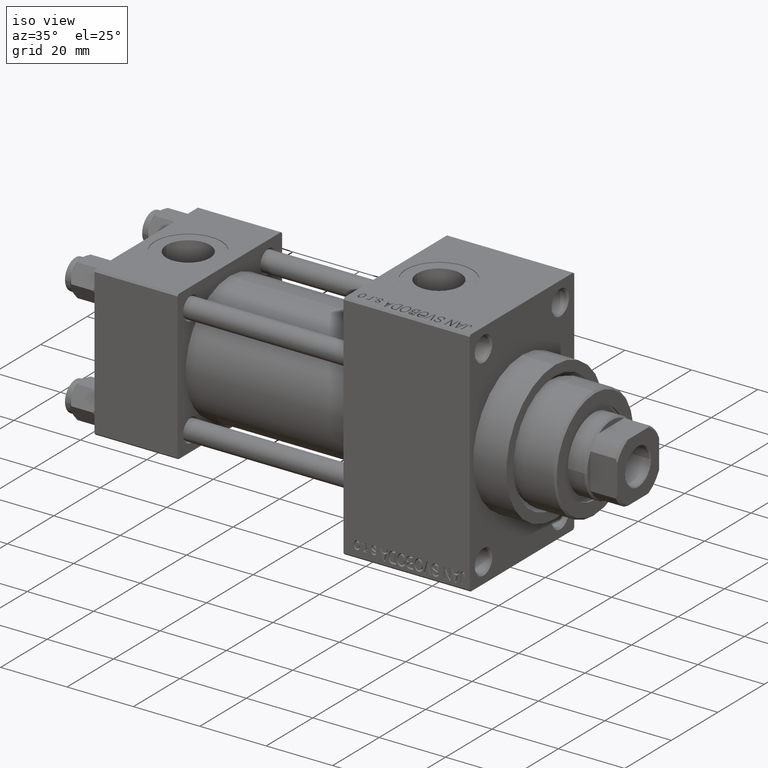
[diagram: clean part render]
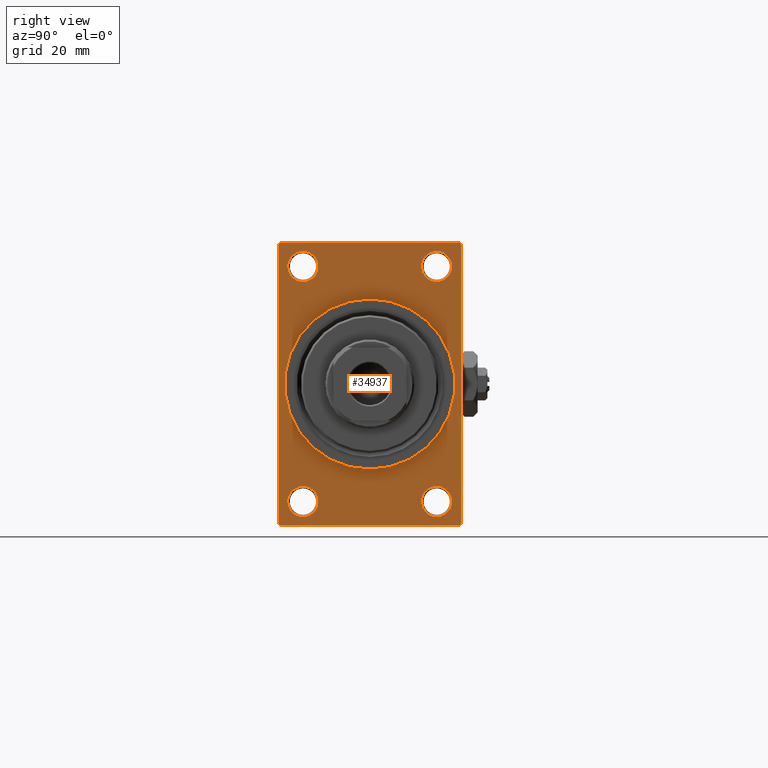
[diagram: tour spotlight — one face highlighted and labeled with its STEP entity id]
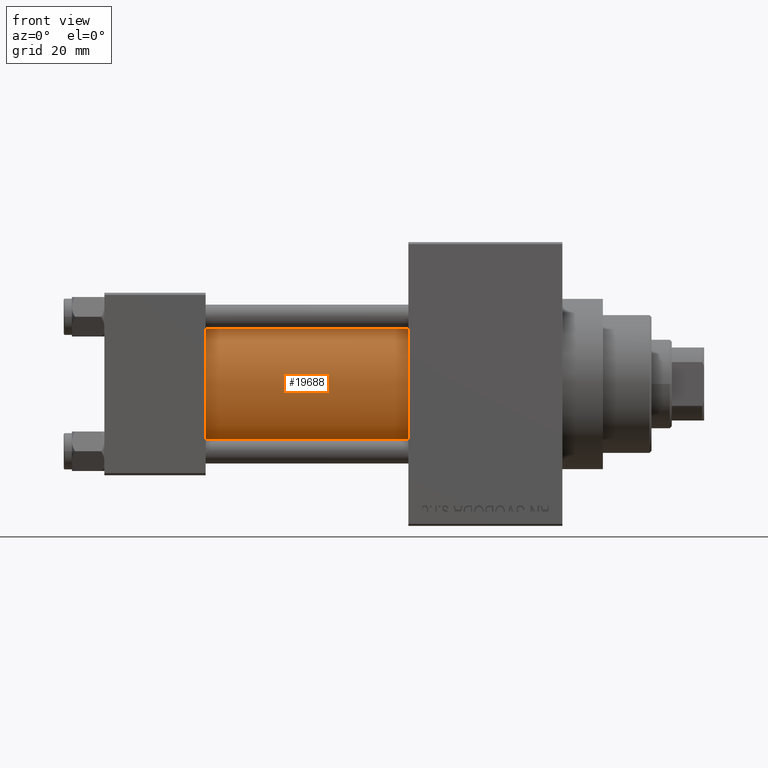
[diagram: tour spotlight — one face highlighted and labeled with its STEP entity id]
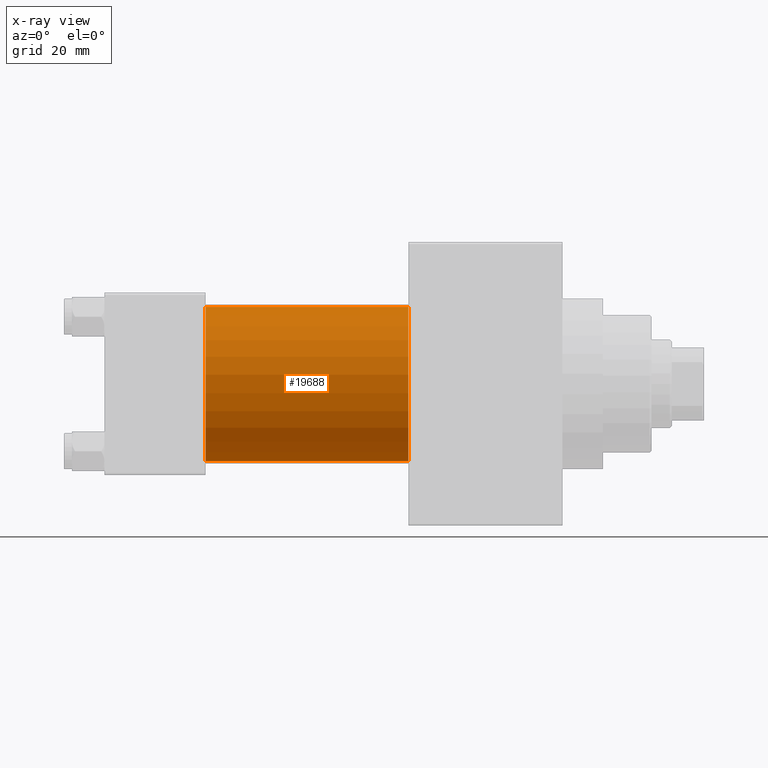
[diagram: x-ray of the same camera — body ghosted, this tour face saturated]
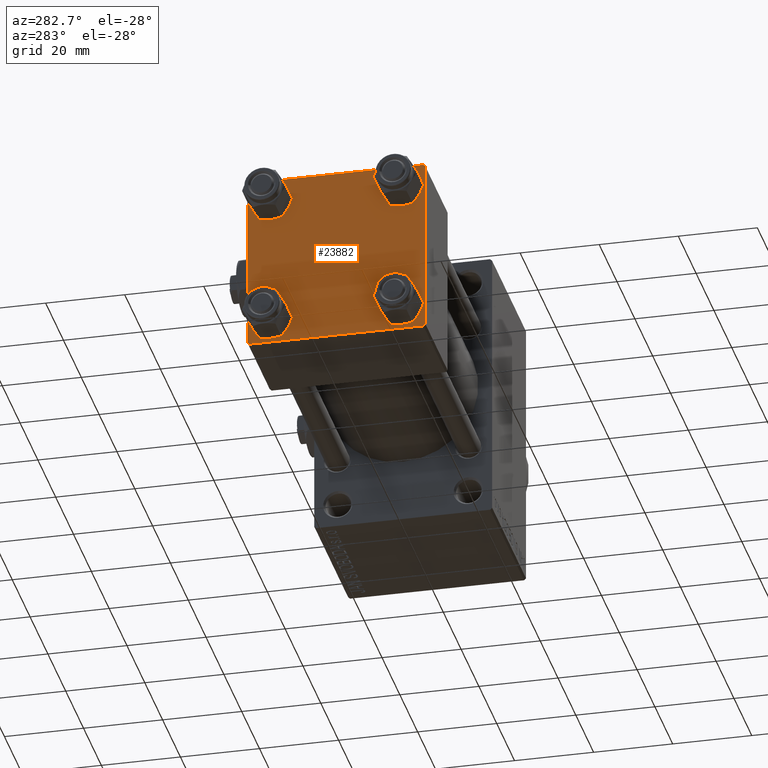
[diagram: tour spotlight — one face highlighted and labeled with its STEP entity id]
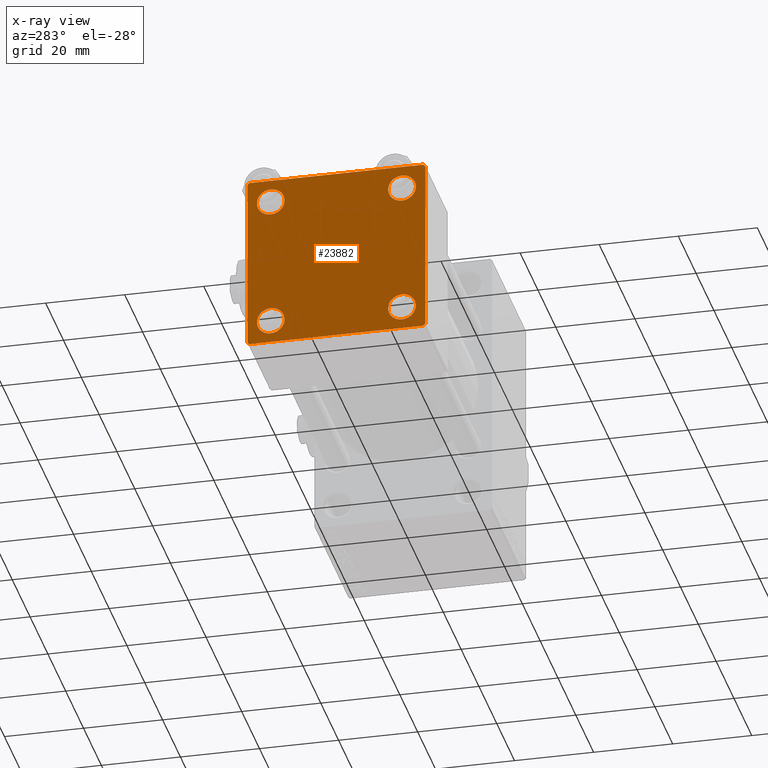
[diagram: x-ray of the same camera — body ghosted, this tour face saturated]
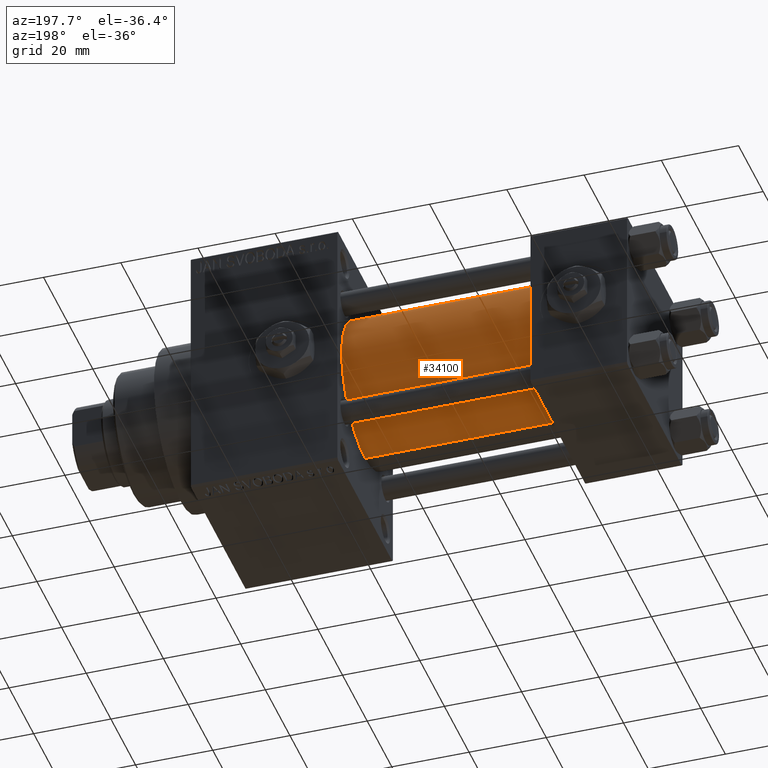
[diagram: tour spotlight — one face highlighted and labeled with its STEP entity id]
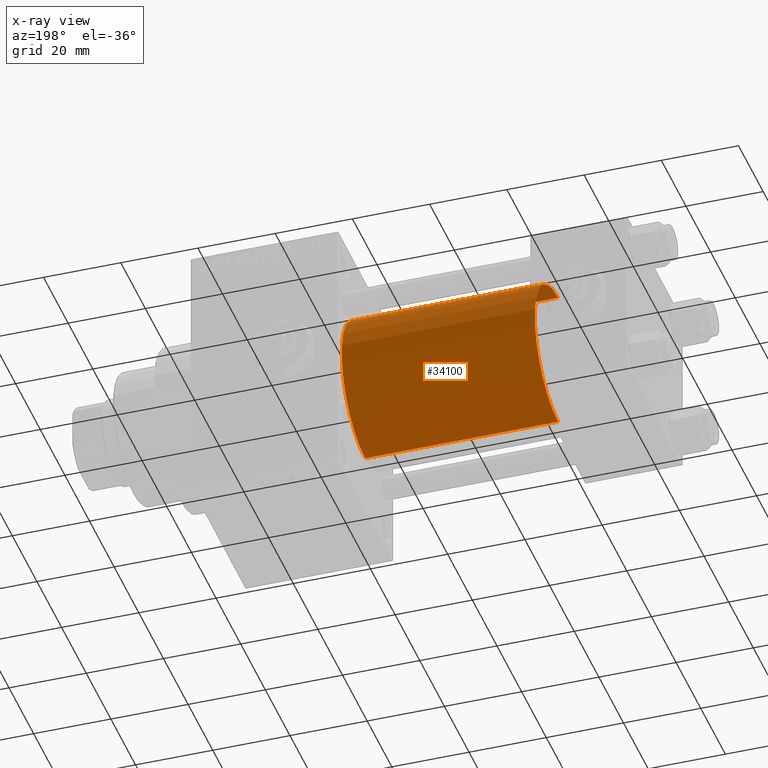
[diagram: x-ray of the same camera — body ghosted, this tour face saturated]
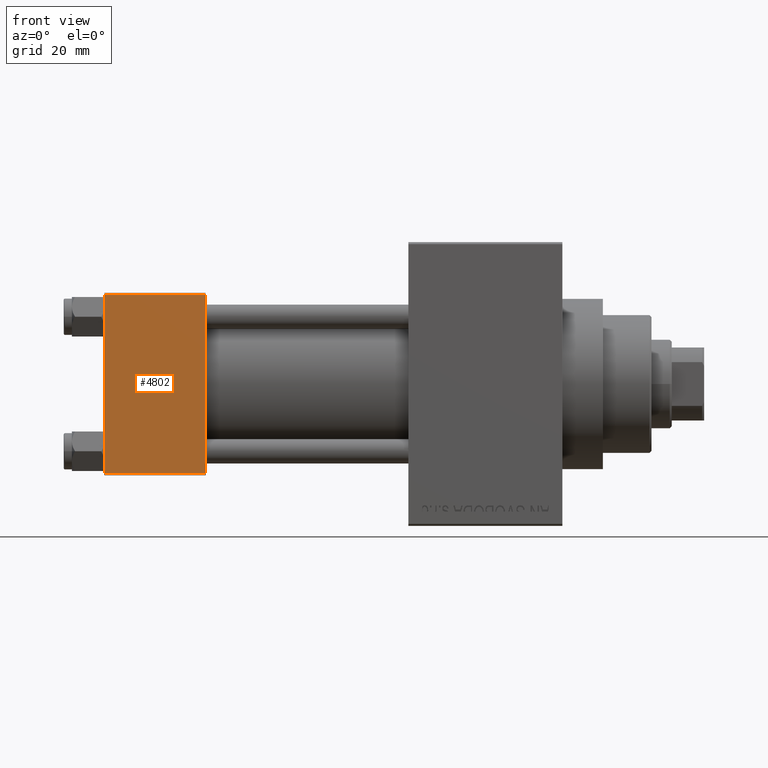
[diagram: tour spotlight — one face highlighted and labeled with its STEP entity id]
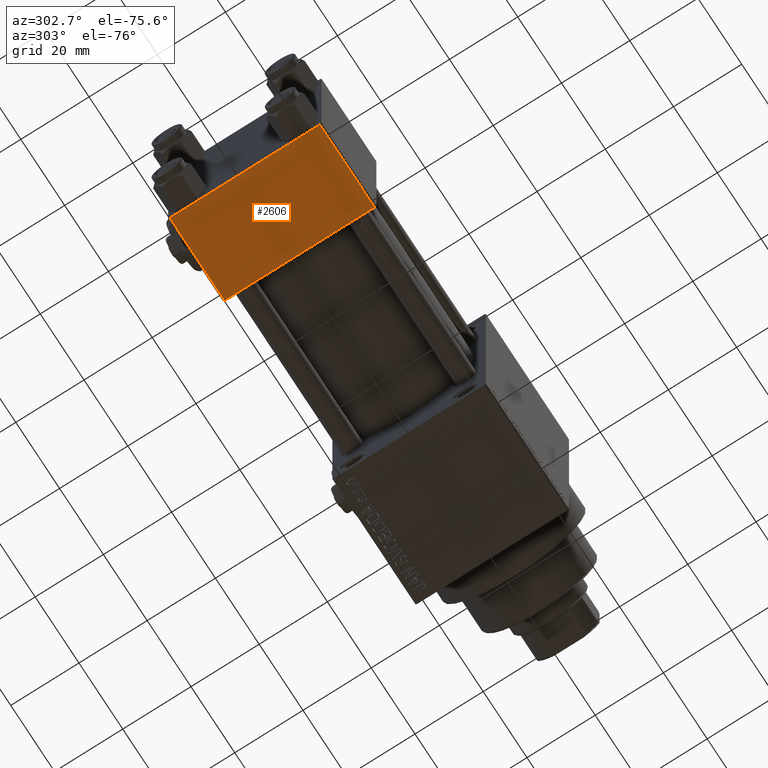
[diagram: tour spotlight — one face highlighted and labeled with its STEP entity id]
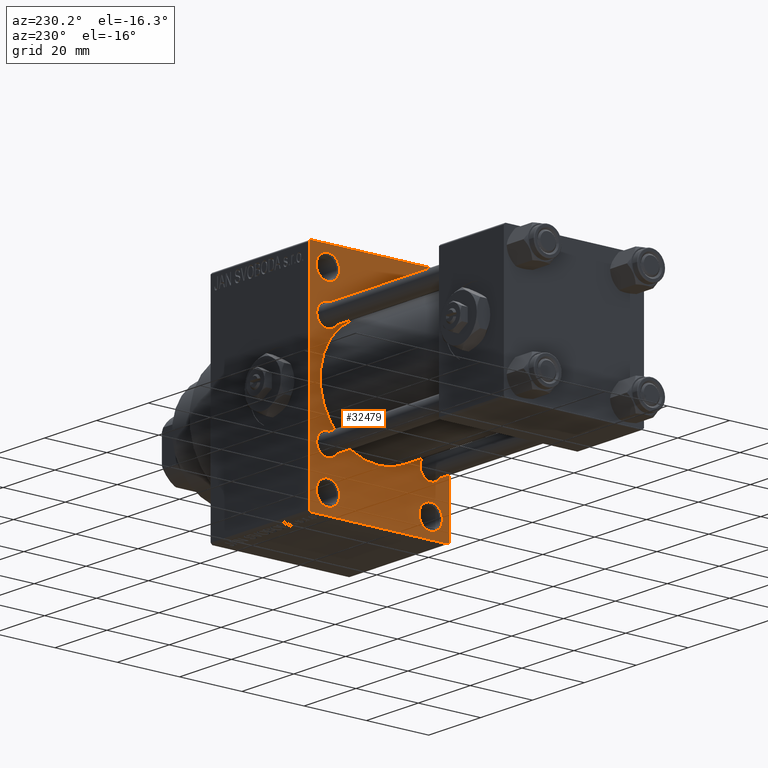
[diagram: tour spotlight — one face highlighted and labeled with its STEP entity id]
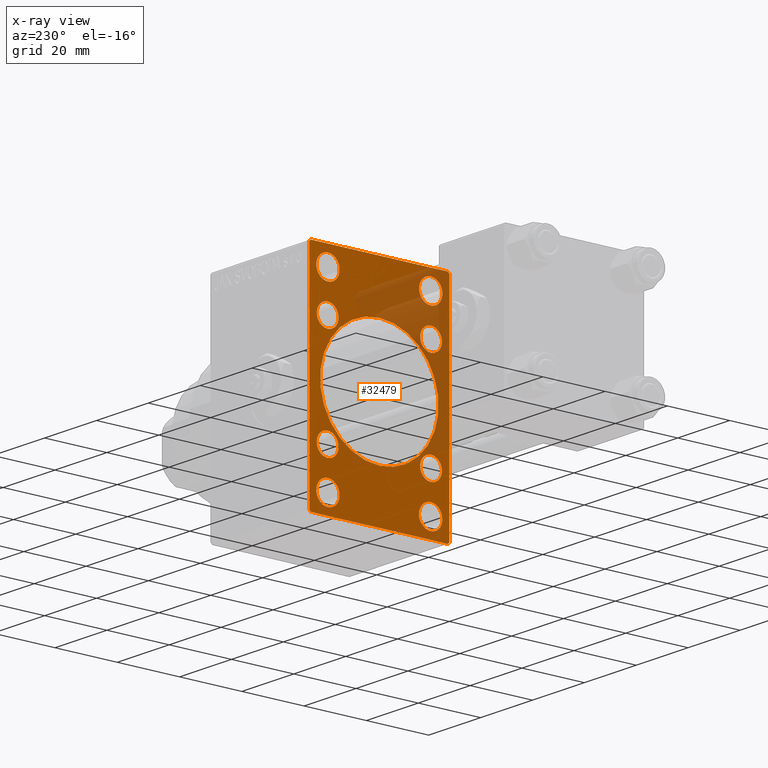
[diagram: x-ray of the same camera — body ghosted, this tour face saturated]
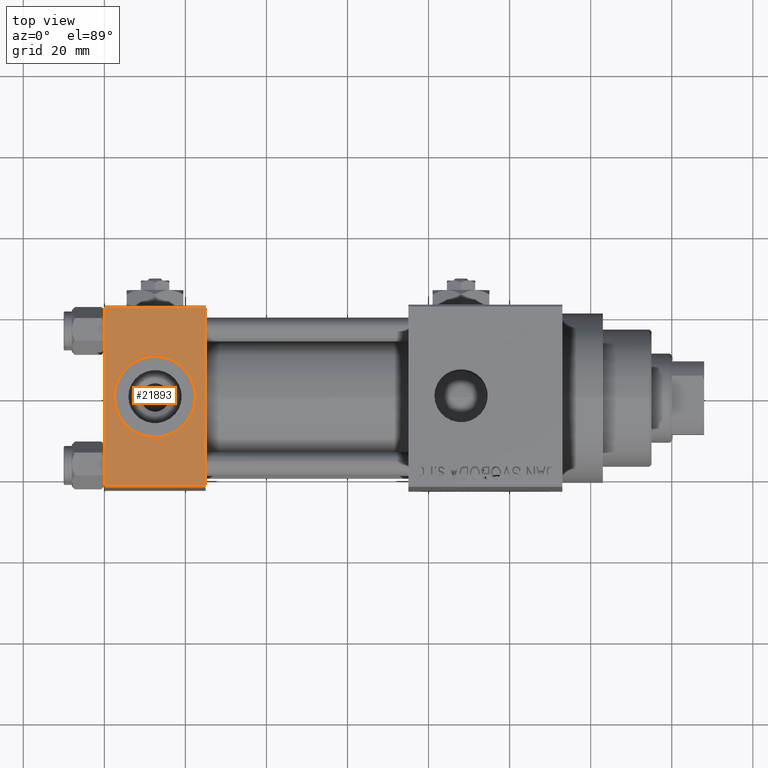
[diagram: tour spotlight — one face highlighted and labeled with its STEP entity id]
A machine part: a face-by-face anatomy tour. The part has 1203 B-rep faces; the first image is the clean iso view, then the 8 largest visible faces are spotlighted one at a time (largest first), each with its STEP entity span.

Face 1 — right view, entity #34937. In plain terms, the highlighted planar face has unit normal (-1, 0, 0).
Definition (entity closure, byte-faithful):
#460 = DIRECTION ( 'NONE',  ( -1.000000000000000000, -0.000000000000000000, -0.000000000000000000 ) ) ;
#476 = FACE_OUTER_BOUND ( 'NONE', #16148, .T. ) ;
#493 = CARTESIAN_POINT ( 'NONE',  ( 113.0000000000000142, -22.50000000000000355, 34.50000000000000000 ) ) ;
#1085 = CARTESIAN_POINT ( 'NONE',  ( 113.0000000000000142, 16.50000000000000000, 29.00000000000000355 ) ) ;
#1234 = EDGE_CURVE ( 'NONE', #47979, #23545, #26171, .T. ) ;
#1308 = DIRECTION ( 'NONE',  ( -1.000000000000000000, -0.000000000000000000, -0.000000000000000000 ) ) ;
#1936 = CARTESIAN_POINT ( 'NONE',  ( 113.0000000000000142, -16.50000000000000000, -32.75000000000007105 ) ) ;
#2445 = VERTEX_POINT ( 'NONE', #31935 ) ;
#2473 = VERTEX_POINT ( 'NONE', #18650 ) ;
#2531 = CARTESIAN_POINT ( 'NONE',  ( 113.0000000000000142, 16.50000000000000000, 32.75000000000007816 ) ) ;
#2744 = VECTOR ( 'NONE', #44691, 1000.000000000000000 ) ;
#3030 = ORIENTED_EDGE ( 'NONE', *, *, #19006, .T. ) ;
#3319 = AXIS2_PLACEMENT_3D ( 'NONE', #26152, #34585, #41820 ) ;
#3347 = EDGE_CURVE ( 'NONE', #13994, #19140, #20018, .T. ) ;
#3456 = DIRECTION ( 'NONE',  ( 0.000000000000000000, -1.000000000000000000, 0.000000000000000000 ) ) ;
#3607 = CIRCLE ( 'NONE', #33756, 3.750000000000069278 ) ;
#3839 = CARTESIAN_POINT ( 'NONE',  ( 113.0000000000000142, -16.50000000000000000, 32.75000000000007816 ) ) ;
#3966 = DIRECTION ( 'NONE',  ( -1.000000000000000000, 0.000000000000000000, -0.000000000000000000 ) ) ;
#4845 = ORIENTED_EDGE ( 'NONE', *, *, #37106, .F. ) ;
#4996 = DIRECTION ( 'NONE',  ( 0.000000000000000000, 0.000000000000000000, -1.000000000000000000 ) ) ;
#5087 = VERTEX_POINT ( 'NONE', #23822 ) ;
#5124 = EDGE_CURVE ( 'NONE', #34916, #5087, #40234, .T. ) ;
#5259 = CARTESIAN_POINT ( 'NONE',  ( 113.0000000000000142, 22.49999999999999645, -34.50000000000000000 ) ) ;
#5442 = DIRECTION ( 'NONE',  ( 0.000000000000000000, 0.000000000000000000, 1.000000000000000000 ) ) ;
#5673 = AXIS2_PLACEMENT_3D ( 'NONE', #30533, #460, #23064 ) ;
#5680 = VERTEX_POINT ( 'NONE', #1936 ) ;
#5791 = ORIENTED_EDGE ( 'NONE', *, *, #5124, .F. ) ;
#7140 = EDGE_CURVE ( 'NONE', #27201, #48851, #29011, .T. ) ;
#7368 = AXIS2_PLACEMENT_3D ( 'NONE', #23873, #39048, #4996 ) ;
#7715 = LINE ( 'NONE', #493, #37198 ) ;
#7803 = EDGE_CURVE ( 'NONE', #36754, #14408, #3607, .T. ) ;
#7816 = DIRECTION ( 'NONE',  ( 0.000000000000000000, 0.000000000000000000, 1.000000000000000000 ) ) ;
#8550 = AXIS2_PLACEMENT_3D ( 'NONE', #16952, #1308, #43820 ) ;
#8982 = DIRECTION ( 'NONE',  ( -0.000000000000000000, 0.7071067811865474617, 0.7071067811865474617 ) ) ;
#10511 = EDGE_CURVE ( 'NONE', #36402, #15813, #49000, .T. ) ;
#10577 = EDGE_CURVE ( 'NONE', #17829, #2473, #19938, .T. ) ;
#11305 = DIRECTION ( 'NONE',  ( -1.000000000000000000, -0.000000000000000000, -0.000000000000000000 ) ) ;
#11760 = DIRECTION ( 'NONE',  ( 0.000000000000000000, 0.000000000000000000, -1.000000000000000000 ) ) ;
#11987 = LINE ( 'NONE', #5259, #44925 ) ;
#12129 = VERTEX_POINT ( 'NONE', #29347 ) ;
#12134 = EDGE_CURVE ( 'NONE', #2445, #40682, #20402, .T. ) ;
#12651 = DIRECTION ( 'NONE',  ( -1.000000000000000000, -0.000000000000000000, -0.000000000000000000 ) ) ;
#12851 = CARTESIAN_POINT ( 'NONE',  ( 113.0000000000000142, -22.50000000000000355, 34.50000000000000000 ) ) ;
#12880 = ORIENTED_EDGE ( 'NONE', *, *, #12134, .T. ) ;
#13792 = EDGE_LOOP ( 'NONE', ( #4845, #16871 ) ) ;
#13994 = VERTEX_POINT ( 'NONE', #36932 ) ;
#14336 = EDGE_CURVE ( 'NONE', #48851, #27201, #39597, .T. ) ;
#14408 = VERTEX_POINT ( 'NONE', #3839 ) ;
#14705 = AXIS2_PLACEMENT_3D ( 'NONE', #1085, #43607, #35869 ) ;
#15497 = VECTOR ( 'NONE', #3456, 1000.000000000000000 ) ;
#15640 = DIRECTION ( 'NONE',  ( -0.000000000000000000, 0.000000000000000000, 1.000000000000000000 ) ) ;
#15813 = VERTEX_POINT ( 'NONE', #32941 ) ;
#15944 = LINE ( 'NONE', #22657, #24752 ) ;
#16148 = EDGE_LOOP ( 'NONE', ( #34894, #3030, #29532, #40223, #5791, #17703, #29677, #26783 ) ) ;
#16871 = ORIENTED_EDGE ( 'NONE', *, *, #10511, .F. ) ;
#16952 = CARTESIAN_POINT ( 'NONE',  ( 113.0000000000000142, -16.50000000000000000, 29.00000000000000711 ) ) ;
#17118 = EDGE_LOOP ( 'NONE', ( #42276, #42185 ) ) ;
#17349 = AXIS2_PLACEMENT_3D ( 'NONE', #29691, #11305, #49105 ) ;
#17703 = ORIENTED_EDGE ( 'NONE', *, *, #34575, .T. ) ;
#17829 = VERTEX_POINT ( 'NONE', #19220 ) ;
#18650 = CARTESIAN_POINT ( 'NONE',  ( 113.0000000000000142, -21.99999999999997513, -35.00000000000000000 ) ) ;
#19006 = EDGE_CURVE ( 'NONE', #23545, #2473, #41814, .T. ) ;
#19140 = VERTEX_POINT ( 'NONE', #43278 ) ;
#19206 = AXIS2_PLACEMENT_3D ( 'NONE', #38014, #3966, #15640 ) ;
#19207 = CARTESIAN_POINT ( 'NONE',  ( 113.0000000000000142, 0.000000000000000000, 0.000000000000000000 ) ) ;
#19220 = CARTESIAN_POINT ( 'NONE',  ( 113.0000000000000142, 21.99999999999999645, -35.00000000000000000 ) ) ;
#19844 = CARTESIAN_POINT ( 'NONE',  ( 113.0000000000000142, -16.50000000000000000, 29.00000000000000711 ) ) ;
#19938 = LINE ( 'NONE', #20426, #20369 ) ;
#20018 = LINE ( 'NONE', #26810, #15497 ) ;
#20369 = VECTOR ( 'NONE', #35113, 1000.000000000000000 ) ;
#20402 = CIRCLE ( 'NONE', #33126, 3.750000000000076383 ) ;
#20426 = CARTESIAN_POINT ( 'NONE',  ( 113.0000000000000142, 22.49999999999999645, -35.00000000000000000 ) ) ;
#20740 = CIRCLE ( 'NONE', #5673, 3.750000000000076383 ) ;
#20816 = EDGE_CURVE ( 'NONE', #14408, #36754, #28387, .T. ) ;
#20827 = EDGE_LOOP ( 'NONE', ( #12880, #26228 ) ) ;
#20895 = DIRECTION ( 'NONE',  ( -1.000000000000000000, -0.000000000000000000, -0.000000000000000000 ) ) ;
#20907 = CARTESIAN_POINT ( 'NONE',  ( 113.0000000000000142, 16.50000000000000000, -25.24999999999992184 ) ) ;
#21780 = CARTESIAN_POINT ( 'NONE',  ( 113.0000000000000142, 2.571758278209441661E-15, -21.00000000000000000 ) ) ;
#22346 = FACE_BOUND ( 'NONE', #17118, .T. ) ;
#22354 = CIRCLE ( 'NONE', #3319, 3.750000000000076383 ) ;
#22657 = CARTESIAN_POINT ( 'NONE',  ( 113.0000000000000142, 21.99999999999999645, 35.00000000000000000 ) ) ;
#23045 = EDGE_CURVE ( 'NONE', #40682, #2445, #41150, .T. ) ;
#23064 = DIRECTION ( 'NONE',  ( 0.000000000000000000, 0.000000000000000000, 1.000000000000000000 ) ) ;
#23319 = FACE_BOUND ( 'NONE', #20827, .T. ) ;
#23383 = DIRECTION ( 'NONE',  ( 0.000000000000000000, -0.7071067811865474617, 0.7071067811865474617 ) ) ;
#23545 = VERTEX_POINT ( 'NONE', #43548 ) ;
#23822 = CARTESIAN_POINT ( 'NONE',  ( 113.0000000000000142, 22.49999999999999645, -34.50000000000000000 ) ) ;
#23873 = CARTESIAN_POINT ( 'NONE',  ( 113.0000000000000142, 0.000000000000000000, 0.000000000000000000 ) ) ;
#24212 = ORIENTED_EDGE ( 'NONE', *, *, #29923, .T. ) ;
#24702 = EDGE_CURVE ( 'NONE', #19140, #47979, #7715, .T. ) ;
#24752 = VECTOR ( 'NONE', #23383, 1000.000000000000114 ) ;
#26152 = CARTESIAN_POINT ( 'NONE',  ( 113.0000000000000142, -16.50000000000000000, -28.99999999999999289 ) ) ;
#26171 = LINE ( 'NONE', #45337, #28121 ) ;
#26228 = ORIENTED_EDGE ( 'NONE', *, *, #23045, .T. ) ;
#26783 = ORIENTED_EDGE ( 'NONE', *, *, #24702, .T. ) ;
#26810 = CARTESIAN_POINT ( 'NONE',  ( 113.0000000000000142, 22.49999999999999645, 35.00000000000000000 ) ) ;
#27201 = VERTEX_POINT ( 'NONE', #46625 ) ;
#27486 = VECTOR ( 'NONE', #30128, 999.9999999999998863 ) ;
#28121 = VECTOR ( 'NONE', #11760, 1000.000000000000000 ) ;
#28387 = CIRCLE ( 'NONE', #8550, 3.750000000000069278 ) ;
#29011 = CIRCLE ( 'NONE', #14705, 3.750000000000072831 ) ;
#29347 = CARTESIAN_POINT ( 'NONE',  ( 113.0000000000000142, -16.50000000000000000, -25.24999999999992184 ) ) ;
#29532 = ORIENTED_EDGE ( 'NONE', *, *, #10577, .F. ) ;
#29677 = ORIENTED_EDGE ( 'NONE', *, *, #3347, .T. ) ;
#29691 = CARTESIAN_POINT ( 'NONE',  ( 113.0000000000000142, 16.50000000000000000, -28.99999999999999289 ) ) ;
#29817 = FACE_BOUND ( 'NONE', #44891, .T. ) ;
#29923 = EDGE_CURVE ( 'NONE', #5680, #12129, #20740, .T. ) ;
#30128 = DIRECTION ( 'NONE',  ( 0.000000000000000000, 0.7071067811865376918, -0.7071067811865574537 ) ) ;
#30402 = DIRECTION ( 'NONE',  ( 1.000000000000000000, 0.000000000000000000, 0.000000000000000000 ) ) ;
#30533 = CARTESIAN_POINT ( 'NONE',  ( 113.0000000000000142, -16.50000000000000000, -28.99999999999999289 ) ) ;
#30824 = DIRECTION ( 'NONE',  ( -0.000000000000000000, -0.7071067811865474617, -0.7071067811865474617 ) ) ;
#31175 = ORIENTED_EDGE ( 'NONE', *, *, #34649, .T. ) ;
#31409 = CARTESIAN_POINT ( 'NONE',  ( 113.0000000000000142, -16.50000000000000000, 25.24999999999993960 ) ) ;
#31916 = ORIENTED_EDGE ( 'NONE', *, *, #20816, .T. ) ;
#31935 = CARTESIAN_POINT ( 'NONE',  ( 113.0000000000000142, 16.50000000000000000, -32.75000000000007105 ) ) ;
#32101 = DIRECTION ( 'NONE',  ( 0.000000000000000000, 0.000000000000000000, 1.000000000000000000 ) ) ;
#32462 = AXIS2_PLACEMENT_3D ( 'NONE', #45608, #41123, #7816 ) ;
#32941 = CARTESIAN_POINT ( 'NONE',  ( 113.0000000000000142, 0.000000000000000000, 21.00000000000000000 ) ) ;
#33007 = CARTESIAN_POINT ( 'NONE',  ( 113.0000000000000142, 22.49999999999999645, 35.00000000000000000 ) ) ;
#33126 = AXIS2_PLACEMENT_3D ( 'NONE', #39819, #20895, #32101 ) ;
#33392 = DIRECTION ( 'NONE',  ( 0.000000000000000000, 0.000000000000000000, -1.000000000000000000 ) ) ;
#33756 = AXIS2_PLACEMENT_3D ( 'NONE', #19844, #12651, #5442 ) ;
#34575 = EDGE_CURVE ( 'NONE', #34916, #13994, #15944, .T. ) ;
#34585 = DIRECTION ( 'NONE',  ( -1.000000000000000000, -0.000000000000000000, -0.000000000000000000 ) ) ;
#34649 = EDGE_CURVE ( 'NONE', #12129, #5680, #22354, .T. ) ;
#34713 = ORIENTED_EDGE ( 'NONE', *, *, #7803, .T. ) ;
#34894 = ORIENTED_EDGE ( 'NONE', *, *, #1234, .T. ) ;
#34916 = VERTEX_POINT ( 'NONE', #42242 ) ;
#34937 = ADVANCED_FACE ( 'NONE', ( #29817, #49210, #23319, #22346, #45494, #476 ), #37513, .F. ) ;
#35113 = DIRECTION ( 'NONE',  ( 0.000000000000000000, -1.000000000000000000, 0.000000000000000000 ) ) ;
#35869 = DIRECTION ( 'NONE',  ( 0.000000000000000000, 0.000000000000000000, 1.000000000000000000 ) ) ;
#36402 = VERTEX_POINT ( 'NONE', #21780 ) ;
#36754 = VERTEX_POINT ( 'NONE', #31409 ) ;
#36932 = CARTESIAN_POINT ( 'NONE',  ( 113.0000000000000142, 21.99999999999999645, 35.00000000000000000 ) ) ;
#37049 = AXIS2_PLACEMENT_3D ( 'NONE', #19207, #30402, #33392 ) ;
#37106 = EDGE_CURVE ( 'NONE', #15813, #36402, #46272, .T. ) ;
#37198 = VECTOR ( 'NONE', #30824, 1000.000000000000114 ) ;
#37513 = PLANE ( 'NONE',  #19206 ) ;
#37571 = CARTESIAN_POINT ( 'NONE',  ( 113.0000000000000142, -21.99999999999998934, -35.00000000000000000 ) ) ;
#38014 = CARTESIAN_POINT ( 'NONE',  ( 113.0000000000000142, 0.000000000000000000, 0.000000000000000000 ) ) ;
#39048 = DIRECTION ( 'NONE',  ( 1.000000000000000000, 0.000000000000000000, 0.000000000000000000 ) ) ;
#39597 = CIRCLE ( 'NONE', #32462, 3.750000000000072831 ) ;
#39819 = CARTESIAN_POINT ( 'NONE',  ( 113.0000000000000142, 16.50000000000000000, -28.99999999999999289 ) ) ;
#40223 = ORIENTED_EDGE ( 'NONE', *, *, #47461, .T. ) ;
#40234 = LINE ( 'NONE', #33007, #2744 ) ;
#40682 = VERTEX_POINT ( 'NONE', #20907 ) ;
#41049 = EDGE_LOOP ( 'NONE', ( #24212, #31175 ) ) ;
#41123 = DIRECTION ( 'NONE',  ( -1.000000000000000000, -0.000000000000000000, -0.000000000000000000 ) ) ;
#41150 = CIRCLE ( 'NONE', #17349, 3.750000000000076383 ) ;
#41814 = LINE ( 'NONE', #37571, #27486 ) ;
#41820 = DIRECTION ( 'NONE',  ( 0.000000000000000000, 0.000000000000000000, 1.000000000000000000 ) ) ;
#42185 = ORIENTED_EDGE ( 'NONE', *, *, #14336, .T. ) ;
#42242 = CARTESIAN_POINT ( 'NONE',  ( 113.0000000000000142, 22.49999999999999645, 34.50000000000000000 ) ) ;
#42276 = ORIENTED_EDGE ( 'NONE', *, *, #7140, .T. ) ;
#43278 = CARTESIAN_POINT ( 'NONE',  ( 113.0000000000000142, -21.99999999999998934, 35.00000000000000000 ) ) ;
#43548 = CARTESIAN_POINT ( 'NONE',  ( 113.0000000000000142, -22.50000000000000355, -34.49999999999997158 ) ) ;
#43607 = DIRECTION ( 'NONE',  ( -1.000000000000000000, -0.000000000000000000, -0.000000000000000000 ) ) ;
#43820 = DIRECTION ( 'NONE',  ( 0.000000000000000000, 0.000000000000000000, 1.000000000000000000 ) ) ;
#44691 = DIRECTION ( 'NONE',  ( 0.000000000000000000, 0.000000000000000000, -1.000000000000000000 ) ) ;
#44891 = EDGE_LOOP ( 'NONE', ( #34713, #31916 ) ) ;
#44925 = VECTOR ( 'NONE', #8982, 1000.000000000000114 ) ;
#45337 = CARTESIAN_POINT ( 'NONE',  ( 113.0000000000000142, -22.50000000000000355, 35.00000000000000000 ) ) ;
#45494 = FACE_BOUND ( 'NONE', #13792, .T. ) ;
#45608 = CARTESIAN_POINT ( 'NONE',  ( 113.0000000000000142, 16.50000000000000000, 29.00000000000000355 ) ) ;
#46272 = CIRCLE ( 'NONE', #7368, 21.00000000000000000 ) ;
#46625 = CARTESIAN_POINT ( 'NONE',  ( 113.0000000000000142, 16.50000000000000000, 25.24999999999993250 ) ) ;
#47461 = EDGE_CURVE ( 'NONE', #17829, #5087, #11987, .T. ) ;
#47979 = VERTEX_POINT ( 'NONE', #12851 ) ;
#48851 = VERTEX_POINT ( 'NONE', #2531 ) ;
#49000 = CIRCLE ( 'NONE', #37049, 21.00000000000000000 ) ;
#49105 = DIRECTION ( 'NONE',  ( 0.000000000000000000, 0.000000000000000000, 1.000000000000000000 ) ) ;
#49210 = FACE_BOUND ( 'NONE', #41049, .T. ) ;

Face 2 — front view, entity #19688. An x-ray twin of the same camera follows (body ghosted, this face saturated) — the face is partly hidden behind the body. In plain terms, the highlighted cylindrical surface (partial cylindrical patch) has radius 19 mm, axis along (-1, -0, -0).
Definition (entity closure, byte-faithful):
#249 = EDGE_LOOP ( 'NONE', ( #11197, #38329, #5636, #42429 ) ) ;
#974 = CARTESIAN_POINT ( 'NONE',  ( 75.00000000000001421, -2.752562955852396712E-16, -19.00000000000000000 ) ) ;
#1963 = LINE ( 'NONE', #39505, #31926 ) ;
#3158 = CARTESIAN_POINT ( 'NONE',  ( 75.00000000000001421, -2.602085213965210642E-15, 0.000000000000000000 ) ) ;
#3766 = VECTOR ( 'NONE', #30358, 1000.000000000000000 ) ;
#4502 = LINE ( 'NONE', #26623, #3766 ) ;
#5636 = ORIENTED_EDGE ( 'NONE', *, *, #21735, .T. ) ;
#5677 = CARTESIAN_POINT ( 'NONE',  ( 25.00000000000000000, -2.602085213965210642E-15, 19.00000000000000000 ) ) ;
#6893 = CYLINDRICAL_SURFACE ( 'NONE', #17243, 19.00000000000000000 ) ;
#7381 = FACE_OUTER_BOUND ( 'NONE', #249, .T. ) ;
#8338 = DIRECTION ( 'NONE',  ( 1.000000000000000000, -0.000000000000000000, 0.000000000000000000 ) ) ;
#8548 = VERTEX_POINT ( 'NONE', #45630 ) ;
#9100 = AXIS2_PLACEMENT_3D ( 'NONE', #45905, #8338, #11842 ) ;
#11007 = CARTESIAN_POINT ( 'NONE',  ( 25.00000000000000000, -2.752562955852396712E-16, -19.00000000000000000 ) ) ;
#11197 = ORIENTED_EDGE ( 'NONE', *, *, #35807, .F. ) ;
#11842 = DIRECTION ( 'NONE',  ( 0.000000000000000000, 0.000000000000000000, 1.000000000000000000 ) ) ;
#14840 = DIRECTION ( 'NONE',  ( 0.000000000000000000, 0.000000000000000000, 1.000000000000000000 ) ) ;
#15140 = DIRECTION ( 'NONE',  ( 0.000000000000000000, 0.000000000000000000, -1.000000000000000000 ) ) ;
#17114 = DIRECTION ( 'NONE',  ( -1.000000000000000000, -0.000000000000000000, -0.000000000000000000 ) ) ;
#17243 = AXIS2_PLACEMENT_3D ( 'NONE', #3158, #22034, #14840 ) ;
#18419 = EDGE_CURVE ( 'NONE', #8548, #25916, #34623, .T. ) ;
#19604 = VERTEX_POINT ( 'NONE', #5677 ) ;
#19688 = ADVANCED_FACE ( 'NONE', ( #7381 ), #6893, .T. ) ;
#21735 = EDGE_CURVE ( 'NONE', #8548, #19604, #4502, .T. ) ;
#21911 = AXIS2_PLACEMENT_3D ( 'NONE', #34026, #49209, #15140 ) ;
#22034 = DIRECTION ( 'NONE',  ( -1.000000000000000000, -0.000000000000000000, -0.000000000000000000 ) ) ;
#25916 = VERTEX_POINT ( 'NONE', #974 ) ;
#26623 = CARTESIAN_POINT ( 'NONE',  ( 75.00000000000001421, -2.602085213965210642E-15, 19.00000000000000000 ) ) ;
#30358 = DIRECTION ( 'NONE',  ( -1.000000000000000000, -0.000000000000000000, -0.000000000000000000 ) ) ;
#30523 = CIRCLE ( 'NONE', #9100, 19.00000000000000000 ) ;
#31926 = VECTOR ( 'NONE', #17114, 1000.000000000000000 ) ;
#34026 = CARTESIAN_POINT ( 'NONE',  ( 75.00000000000001421, -2.602085213965210642E-15, 0.000000000000000000 ) ) ;
#34441 = VERTEX_POINT ( 'NONE', #11007 ) ;
#34623 = CIRCLE ( 'NONE', #21911, 19.00000000000000000 ) ;
#35807 = EDGE_CURVE ( 'NONE', #25916, #34441, #1963, .T. ) ;
#38329 = ORIENTED_EDGE ( 'NONE', *, *, #18419, .F. ) ;
#39505 = CARTESIAN_POINT ( 'NONE',  ( 75.00000000000001421, -2.752562955852396712E-16, -19.00000000000000000 ) ) ;
#41455 = EDGE_CURVE ( 'NONE', #19604, #34441, #30523, .T. ) ;
#42429 = ORIENTED_EDGE ( 'NONE', *, *, #41455, .T. ) ;
#45630 = CARTESIAN_POINT ( 'NONE',  ( 75.00000000000001421, -2.602085213965210642E-15, 19.00000000000000000 ) ) ;
#45905 = CARTESIAN_POINT ( 'NONE',  ( 25.00000000000000000, -2.602085213965210642E-15, 0.000000000000000000 ) ) ;
#49209 = DIRECTION ( 'NONE',  ( 1.000000000000000000, 0.000000000000000000, 0.000000000000000000 ) ) ;

Face 3 — auxiliary view, entity #23882. An x-ray twin of the same camera follows (body ghosted, this face saturated) — the face is partly hidden behind the body. In plain terms, the highlighted planar face has unit normal (-1, 0, 0).
Definition (entity closure, byte-faithful):
#161 = ORIENTED_EDGE ( 'NONE', *, *, #46744, .T. ) ;
#389 = VERTEX_POINT ( 'NONE', #37343 ) ;
#451 = AXIS2_PLACEMENT_3D ( 'NONE', #40559, #17197, #48280 ) ;
#935 = CARTESIAN_POINT ( 'NONE',  ( 0.000000000000000000, -16.59999999999999076, 13.10000000000001030 ) ) ;
#970 = FACE_BOUND ( 'NONE', #44390, .T. ) ;
#1125 = CARTESIAN_POINT ( 'NONE',  ( 0.000000000000000000, 22.50000000000000000, 22.50000000000000355 ) ) ;
#1324 = CARTESIAN_POINT ( 'NONE',  ( 0.000000000000000000, 21.99999999999999289, -22.49999999999999645 ) ) ;
#2086 = CARTESIAN_POINT ( 'NONE',  ( 0.000000000000000000, -22.50000000000000000, -21.99999999999997158 ) ) ;
#2178 = ORIENTED_EDGE ( 'NONE', *, *, #40930, .T. ) ;
#2379 = AXIS2_PLACEMENT_3D ( 'NONE', #29169, #10294, #40602 ) ;
#3408 = VERTEX_POINT ( 'NONE', #31961 ) ;
#3435 = LINE ( 'NONE', #18578, #3568 ) ;
#3524 = VERTEX_POINT ( 'NONE', #3596 ) ;
#3568 = VECTOR ( 'NONE', #30038, 1000.000000000000000 ) ;
#3596 = CARTESIAN_POINT ( 'NONE',  ( 0.000000000000000000, 21.99999999999999289, 22.50000000000000355 ) ) ;
#4909 = VERTEX_POINT ( 'NONE', #19117 ) ;
#5395 = AXIS2_PLACEMENT_3D ( 'NONE', #42602, #39103, #31402 ) ;
#5481 = VERTEX_POINT ( 'NONE', #26069 ) ;
#6022 = CARTESIAN_POINT ( 'NONE',  ( 0.000000000000000000, 16.59999999999999787, 20.10000000000000142 ) ) ;
#6206 = AXIS2_PLACEMENT_3D ( 'NONE', #10709, #33811, #42020 ) ;
#6319 = VERTEX_POINT ( 'NONE', #32143 ) ;
#7398 = DIRECTION ( 'NONE',  ( 0.000000000000000000, 0.000000000000000000, -1.000000000000000000 ) ) ;
#8367 = DIRECTION ( 'NONE',  ( 1.000000000000000000, -0.000000000000000000, 0.000000000000000000 ) ) ;
#8681 = DIRECTION ( 'NONE',  ( -0.000000000000000000, 0.000000000000000000, 1.000000000000000000 ) ) ;
#9455 = CARTESIAN_POINT ( 'NONE',  ( 0.000000000000000000, 22.24999999999999645, 22.24999999999999645 ) ) ;
#9793 = AXIS2_PLACEMENT_3D ( 'NONE', #10755, #22912, #26398 ) ;
#10294 = DIRECTION ( 'NONE',  ( 1.000000000000000000, -0.000000000000000000, 0.000000000000000000 ) ) ;
#10696 = DIRECTION ( 'NONE',  ( 0.000000000000000000, 0.000000000000000000, 1.000000000000000000 ) ) ;
#10709 = CARTESIAN_POINT ( 'NONE',  ( 0.000000000000000000, 16.59999999999999787, 16.60000000000000497 ) ) ;
#10755 = CARTESIAN_POINT ( 'NONE',  ( 0.000000000000000000, 16.59999999999999787, -16.60000000000000497 ) ) ;
#11021 = ORIENTED_EDGE ( 'NONE', *, *, #26266, .T. ) ;
#11122 = EDGE_CURVE ( 'NONE', #42638, #41067, #19587, .T. ) ;
#11131 = AXIS2_PLACEMENT_3D ( 'NONE', #32487, #35710, #25014 ) ;
#11321 = ORIENTED_EDGE ( 'NONE', *, *, #11122, .T. ) ;
#11810 = CARTESIAN_POINT ( 'NONE',  ( 0.000000000000000000, 22.25000000000014566, -22.24999999999984013 ) ) ;
#12241 = EDGE_CURVE ( 'NONE', #46778, #389, #46663, .T. ) ;
#12412 = PLANE ( 'NONE',  #20495 ) ;
#13145 = FACE_BOUND ( 'NONE', #40993, .T. ) ;
#13709 = CARTESIAN_POINT ( 'NONE',  ( 0.000000000000000000, -16.59999999999999076, -13.10000000000001030 ) ) ;
#14485 = DIRECTION ( 'NONE',  ( 1.000000000000000000, -0.000000000000000000, 0.000000000000000000 ) ) ;
#14736 = CARTESIAN_POINT ( 'NONE',  ( 0.000000000000000000, -16.59999999999999076, -16.60000000000000853 ) ) ;
#14748 = CIRCLE ( 'NONE', #451, 3.499999999999996003 ) ;
#15284 = LINE ( 'NONE', #11810, #46233 ) ;
#16170 = VERTEX_POINT ( 'NONE', #2086 ) ;
#16374 = VECTOR ( 'NONE', #44803, 1000.000000000000000 ) ;
#16658 = EDGE_CURVE ( 'NONE', #29382, #6319, #34048, .T. ) ;
#17041 = VECTOR ( 'NONE', #36026, 1000.000000000000114 ) ;
#17188 = ORIENTED_EDGE ( 'NONE', *, *, #39557, .T. ) ;
#17197 = DIRECTION ( 'NONE',  ( 1.000000000000000000, -0.000000000000000000, 0.000000000000000000 ) ) ;
#17316 = CARTESIAN_POINT ( 'NONE',  ( 0.000000000000000000, 16.59999999999999787, -13.10000000000000675 ) ) ;
#17388 = VECTOR ( 'NONE', #7398, 1000.000000000000000 ) ;
#18563 = CARTESIAN_POINT ( 'NONE',  ( 0.000000000000000000, 22.50000000000000000, 22.50000000000000355 ) ) ;
#18578 = CARTESIAN_POINT ( 'NONE',  ( 0.000000000000000000, 22.50000000000000000, -22.49999999999999645 ) ) ;
#18823 = VECTOR ( 'NONE', #19122, 999.9999999999998863 ) ;
#19117 = CARTESIAN_POINT ( 'NONE',  ( 0.000000000000000000, -16.59999999999999076, -20.10000000000000497 ) ) ;
#19122 = DIRECTION ( 'NONE',  ( -0.000000000000000000, 0.7071067811865525687, 0.7071067811865425767 ) ) ;
#19587 = CIRCLE ( 'NONE', #47410, 3.499999999999996003 ) ;
#19815 = CIRCLE ( 'NONE', #2379, 3.499999999999996003 ) ;
#20333 = CARTESIAN_POINT ( 'NONE',  ( 0.000000000000000000, 22.50000000000000000, 21.99999999999999645 ) ) ;
#20495 = AXIS2_PLACEMENT_3D ( 'NONE', #27562, #42748, #8681 ) ;
#20501 = DIRECTION ( 'NONE',  ( 0.000000000000000000, 0.000000000000000000, -1.000000000000000000 ) ) ;
#22350 = VERTEX_POINT ( 'NONE', #1324 ) ;
#22391 = EDGE_CURVE ( 'NONE', #27003, #5481, #30011, .T. ) ;
#22492 = AXIS2_PLACEMENT_3D ( 'NONE', #14736, #14485, #45820 ) ;
#22912 = DIRECTION ( 'NONE',  ( 1.000000000000000000, -0.000000000000000000, 0.000000000000000000 ) ) ;
#22977 = ORIENTED_EDGE ( 'NONE', *, *, #42483, .T. ) ;
#23882 = ADVANCED_FACE ( 'NONE', ( #970, #35756, #13145, #39751, #28304 ), #12412, .T. ) ;
#24054 = CIRCLE ( 'NONE', #9793, 3.499999999999996003 ) ;
#24849 = ORIENTED_EDGE ( 'NONE', *, *, #37560, .T. ) ;
#24982 = EDGE_LOOP ( 'NONE', ( #42601, #161 ) ) ;
#25011 = EDGE_CURVE ( 'NONE', #38002, #33601, #41704, .T. ) ;
#25014 = DIRECTION ( 'NONE',  ( 0.000000000000000000, 0.000000000000000000, 1.000000000000000000 ) ) ;
#26069 = CARTESIAN_POINT ( 'NONE',  ( 0.000000000000000000, 16.59999999999999787, -20.10000000000000142 ) ) ;
#26266 = EDGE_CURVE ( 'NONE', #41067, #42638, #19815, .T. ) ;
#26398 = DIRECTION ( 'NONE',  ( 0.000000000000000000, 0.000000000000000000, 1.000000000000000000 ) ) ;
#27003 = VERTEX_POINT ( 'NONE', #17316 ) ;
#27008 = EDGE_CURVE ( 'NONE', #4909, #45626, #30975, .T. ) ;
#27218 = LINE ( 'NONE', #1125, #42909 ) ;
#27338 = ORIENTED_EDGE ( 'NONE', *, *, #44462, .T. ) ;
#27562 = CARTESIAN_POINT ( 'NONE',  ( 0.000000000000000000, 0.000000000000000000, 0.000000000000000000 ) ) ;
#27981 = EDGE_CURVE ( 'NONE', #3524, #6319, #27218, .T. ) ;
#28304 = FACE_OUTER_BOUND ( 'NONE', #38782, .T. ) ;
#28689 = ORIENTED_EDGE ( 'NONE', *, *, #27981, .F. ) ;
#29169 = CARTESIAN_POINT ( 'NONE',  ( 0.000000000000000000, -16.59999999999999076, 16.60000000000000853 ) ) ;
#29382 = VERTEX_POINT ( 'NONE', #31390 ) ;
#30011 = CIRCLE ( 'NONE', #5395, 3.499999999999996003 ) ;
#30038 = DIRECTION ( 'NONE',  ( 0.000000000000000000, -1.000000000000000000, -2.312964634635742957E-16 ) ) ;
#30120 = CARTESIAN_POINT ( 'NONE',  ( 0.000000000000000000, -22.25000000000014566, -22.24999999999984013 ) ) ;
#30555 = CARTESIAN_POINT ( 'NONE',  ( -0.000000000000000000, -22.24999999999984013, 22.25000000000015277 ) ) ;
#30975 = CIRCLE ( 'NONE', #11131, 3.499999999999996003 ) ;
#31390 = CARTESIAN_POINT ( 'NONE',  ( 0.000000000000000000, -22.50000000000000000, 22.00000000000000000 ) ) ;
#31402 = DIRECTION ( 'NONE',  ( 0.000000000000000000, 0.000000000000000000, 1.000000000000000000 ) ) ;
#31961 = CARTESIAN_POINT ( 'NONE',  ( 0.000000000000000000, -21.99999999999997158, -22.50000000000000711 ) ) ;
#32143 = CARTESIAN_POINT ( 'NONE',  ( 0.000000000000000000, -21.99999999999997868, 22.50000000000000000 ) ) ;
#32215 = VECTOR ( 'NONE', #20501, 1000.000000000000000 ) ;
#32217 = ORIENTED_EDGE ( 'NONE', *, *, #43826, .F. ) ;
#32487 = CARTESIAN_POINT ( 'NONE',  ( 0.000000000000000000, -16.59999999999999076, -16.60000000000000853 ) ) ;
#33601 = VERTEX_POINT ( 'NONE', #46217 ) ;
#33811 = DIRECTION ( 'NONE',  ( 1.000000000000000000, -0.000000000000000000, 0.000000000000000000 ) ) ;
#34048 = LINE ( 'NONE', #30555, #18823 ) ;
#35092 = EDGE_LOOP ( 'NONE', ( #17188, #40528 ) ) ;
#35274 = EDGE_CURVE ( 'NONE', #33601, #22350, #15284, .T. ) ;
#35710 = DIRECTION ( 'NONE',  ( 1.000000000000000000, -0.000000000000000000, 0.000000000000000000 ) ) ;
#35756 = FACE_BOUND ( 'NONE', #35092, .T. ) ;
#35785 = ORIENTED_EDGE ( 'NONE', *, *, #25011, .T. ) ;
#36026 = DIRECTION ( 'NONE',  ( 0.000000000000000000, 0.7071067811865474617, -0.7071067811865474617 ) ) ;
#37343 = CARTESIAN_POINT ( 'NONE',  ( 0.000000000000000000, 16.59999999999999787, 13.10000000000000675 ) ) ;
#37560 = EDGE_CURVE ( 'NONE', #5481, #27003, #24054, .T. ) ;
#38002 = VERTEX_POINT ( 'NONE', #20333 ) ;
#38414 = DIRECTION ( 'NONE',  ( 0.000000000000000000, -1.000000000000000000, -7.709882115452476934E-17 ) ) ;
#38675 = LINE ( 'NONE', #43405, #32215 ) ;
#38724 = CARTESIAN_POINT ( 'NONE',  ( 0.000000000000000000, -16.59999999999999076, 20.10000000000000853 ) ) ;
#38782 = EDGE_LOOP ( 'NONE', ( #35785, #46772, #22977, #27338, #32217, #44596, #28689, #2178 ) ) ;
#39103 = DIRECTION ( 'NONE',  ( 1.000000000000000000, -0.000000000000000000, 0.000000000000000000 ) ) ;
#39557 = EDGE_CURVE ( 'NONE', #45626, #4909, #43961, .T. ) ;
#39751 = FACE_BOUND ( 'NONE', #24982, .T. ) ;
#40528 = ORIENTED_EDGE ( 'NONE', *, *, #27008, .T. ) ;
#40559 = CARTESIAN_POINT ( 'NONE',  ( 0.000000000000000000, 16.59999999999999787, 16.60000000000000497 ) ) ;
#40602 = DIRECTION ( 'NONE',  ( 0.000000000000000000, 0.000000000000000000, 1.000000000000000000 ) ) ;
#40930 = EDGE_CURVE ( 'NONE', #3524, #38002, #43514, .T. ) ;
#40993 = EDGE_LOOP ( 'NONE', ( #47595, #24849 ) ) ;
#41067 = VERTEX_POINT ( 'NONE', #38724 ) ;
#41704 = LINE ( 'NONE', #18563, #17388 ) ;
#41804 = LINE ( 'NONE', #30120, #16374 ) ;
#41892 = DIRECTION ( 'NONE',  ( -0.000000000000000000, -0.7071067811865426878, -0.7071067811865524577 ) ) ;
#42020 = DIRECTION ( 'NONE',  ( 0.000000000000000000, 0.000000000000000000, 1.000000000000000000 ) ) ;
#42483 = EDGE_CURVE ( 'NONE', #22350, #3408, #3435, .T. ) ;
#42601 = ORIENTED_EDGE ( 'NONE', *, *, #12241, .T. ) ;
#42602 = CARTESIAN_POINT ( 'NONE',  ( 0.000000000000000000, 16.59999999999999787, -16.60000000000000497 ) ) ;
#42638 = VERTEX_POINT ( 'NONE', #935 ) ;
#42748 = DIRECTION ( 'NONE',  ( -1.000000000000000000, 0.000000000000000000, -0.000000000000000000 ) ) ;
#42909 = VECTOR ( 'NONE', #38414, 1000.000000000000000 ) ;
#43405 = CARTESIAN_POINT ( 'NONE',  ( 0.000000000000000000, -22.50000000000000000, 22.50000000000000000 ) ) ;
#43514 = LINE ( 'NONE', #9455, #17041 ) ;
#43826 = EDGE_CURVE ( 'NONE', #29382, #16170, #38675, .T. ) ;
#43961 = CIRCLE ( 'NONE', #22492, 3.499999999999996003 ) ;
#44390 = EDGE_LOOP ( 'NONE', ( #11021, #11321 ) ) ;
#44462 = EDGE_CURVE ( 'NONE', #3408, #16170, #41804, .T. ) ;
#44596 = ORIENTED_EDGE ( 'NONE', *, *, #16658, .T. ) ;
#44803 = DIRECTION ( 'NONE',  ( 0.000000000000000000, -0.7071067811865426878, 0.7071067811865524577 ) ) ;
#45626 = VERTEX_POINT ( 'NONE', #13709 ) ;
#45820 = DIRECTION ( 'NONE',  ( 0.000000000000000000, 0.000000000000000000, 1.000000000000000000 ) ) ;
#46217 = CARTESIAN_POINT ( 'NONE',  ( 0.000000000000000000, 22.50000000000000000, -21.99999999999996803 ) ) ;
#46233 = VECTOR ( 'NONE', #41892, 1000.000000000000000 ) ;
#46663 = CIRCLE ( 'NONE', #6206, 3.499999999999996003 ) ;
#46744 = EDGE_CURVE ( 'NONE', #389, #46778, #14748, .T. ) ;
#46772 = ORIENTED_EDGE ( 'NONE', *, *, #35274, .T. ) ;
#46778 = VERTEX_POINT ( 'NONE', #6022 ) ;
#47410 = AXIS2_PLACEMENT_3D ( 'NONE', #48729, #8367, #10696 ) ;
#47595 = ORIENTED_EDGE ( 'NONE', *, *, #22391, .T. ) ;
#48280 = DIRECTION ( 'NONE',  ( 0.000000000000000000, 0.000000000000000000, 1.000000000000000000 ) ) ;
#48729 = CARTESIAN_POINT ( 'NONE',  ( 0.000000000000000000, -16.59999999999999076, 16.60000000000000853 ) ) ;

Face 4 — auxiliary view, entity #34100. An x-ray twin of the same camera follows (body ghosted, this face saturated) — the face is partly hidden behind the body. In plain terms, the highlighted cylindrical surface (partial cylindrical patch) has radius 19 mm, axis along (-1, -0, -0).
Definition (entity closure, byte-faithful):
#54 = DIRECTION ( 'NONE',  ( 0.000000000000000000, 0.000000000000000000, -1.000000000000000000 ) ) ;
#223 = DIRECTION ( 'NONE',  ( 0.000000000000000000, 0.000000000000000000, 1.000000000000000000 ) ) ;
#974 = CARTESIAN_POINT ( 'NONE',  ( 75.00000000000001421, -2.752562955852396712E-16, -19.00000000000000000 ) ) ;
#1193 = AXIS2_PLACEMENT_3D ( 'NONE', #3953, #19106, #223 ) ;
#1963 = LINE ( 'NONE', #39505, #31926 ) ;
#3285 = EDGE_CURVE ( 'NONE', #34441, #19604, #17856, .T. ) ;
#3346 = CYLINDRICAL_SURFACE ( 'NONE', #27120, 19.00000000000000000 ) ;
#3766 = VECTOR ( 'NONE', #30358, 1000.000000000000000 ) ;
#3953 = CARTESIAN_POINT ( 'NONE',  ( 25.00000000000000000, -2.602085213965210642E-15, 0.000000000000000000 ) ) ;
#4502 = LINE ( 'NONE', #26623, #3766 ) ;
#5677 = CARTESIAN_POINT ( 'NONE',  ( 25.00000000000000000, -2.602085213965210642E-15, 19.00000000000000000 ) ) ;
#6533 = EDGE_CURVE ( 'NONE', #25916, #8548, #27364, .T. ) ;
#8548 = VERTEX_POINT ( 'NONE', #45630 ) ;
#11007 = CARTESIAN_POINT ( 'NONE',  ( 25.00000000000000000, -2.752562955852396712E-16, -19.00000000000000000 ) ) ;
#11237 = DIRECTION ( 'NONE',  ( 1.000000000000000000, 0.000000000000000000, 0.000000000000000000 ) ) ;
#11546 = ORIENTED_EDGE ( 'NONE', *, *, #6533, .F. ) ;
#17114 = DIRECTION ( 'NONE',  ( -1.000000000000000000, -0.000000000000000000, -0.000000000000000000 ) ) ;
#17856 = CIRCLE ( 'NONE', #1193, 19.00000000000000000 ) ;
#18243 = FACE_OUTER_BOUND ( 'NONE', #31764, .T. ) ;
#19106 = DIRECTION ( 'NONE',  ( 1.000000000000000000, -0.000000000000000000, 0.000000000000000000 ) ) ;
#19604 = VERTEX_POINT ( 'NONE', #5677 ) ;
#21735 = EDGE_CURVE ( 'NONE', #8548, #19604, #4502, .T. ) ;
#21820 = AXIS2_PLACEMENT_3D ( 'NONE', #30127, #11237, #54 ) ;
#23798 = ORIENTED_EDGE ( 'NONE', *, *, #35807, .T. ) ;
#25916 = VERTEX_POINT ( 'NONE', #974 ) ;
#26623 = CARTESIAN_POINT ( 'NONE',  ( 75.00000000000001421, -2.602085213965210642E-15, 19.00000000000000000 ) ) ;
#27120 = AXIS2_PLACEMENT_3D ( 'NONE', #33184, #29688, #32937 ) ;
#27364 = CIRCLE ( 'NONE', #21820, 19.00000000000000000 ) ;
#29688 = DIRECTION ( 'NONE',  ( -1.000000000000000000, -0.000000000000000000, -0.000000000000000000 ) ) ;
#30127 = CARTESIAN_POINT ( 'NONE',  ( 75.00000000000001421, -2.602085213965210642E-15, 0.000000000000000000 ) ) ;
#30358 = DIRECTION ( 'NONE',  ( -1.000000000000000000, -0.000000000000000000, -0.000000000000000000 ) ) ;
#31764 = EDGE_LOOP ( 'NONE', ( #11546, #23798, #41786, #48038 ) ) ;
#31926 = VECTOR ( 'NONE', #17114, 1000.000000000000000 ) ;
#32937 = DIRECTION ( 'NONE',  ( 0.000000000000000000, 0.000000000000000000, 1.000000000000000000 ) ) ;
#33184 = CARTESIAN_POINT ( 'NONE',  ( 75.00000000000001421, -2.602085213965210642E-15, 0.000000000000000000 ) ) ;
#34100 = ADVANCED_FACE ( 'NONE', ( #18243 ), #3346, .T. ) ;
#34441 = VERTEX_POINT ( 'NONE', #11007 ) ;
#35807 = EDGE_CURVE ( 'NONE', #25916, #34441, #1963, .T. ) ;
#39505 = CARTESIAN_POINT ( 'NONE',  ( 75.00000000000001421, -2.752562955852396712E-16, -19.00000000000000000 ) ) ;
#41786 = ORIENTED_EDGE ( 'NONE', *, *, #3285, .T. ) ;
#45630 = CARTESIAN_POINT ( 'NONE',  ( 75.00000000000001421, -2.602085213965210642E-15, 19.00000000000000000 ) ) ;
#48038 = ORIENTED_EDGE ( 'NONE', *, *, #21735, .F. ) ;

Face 5 — front view, entity #4802. In plain terms, the highlighted planar face has unit normal (0, 1, 0).
Definition (entity closure, byte-faithful):
#1023 = DIRECTION ( 'NONE',  ( 0.000000000000000000, -0.000000000000000000, 1.000000000000000000 ) ) ;
#1399 = CARTESIAN_POINT ( 'NONE',  ( 25.00000000000000000, -22.50000000000000000, -21.99999999999997158 ) ) ;
#1766 = CARTESIAN_POINT ( 'NONE',  ( 25.00000000000000000, -22.50000000000000000, 22.50000000000000000 ) ) ;
#2086 = CARTESIAN_POINT ( 'NONE',  ( 0.000000000000000000, -22.50000000000000000, -21.99999999999997158 ) ) ;
#2597 = DIRECTION ( 'NONE',  ( -1.000000000000000000, 0.000000000000000000, 0.000000000000000000 ) ) ;
#3260 = LINE ( 'NONE', #38044, #7158 ) ;
#4802 = ADVANCED_FACE ( 'NONE', ( #36057 ), #31350, .F. ) ;
#4920 = ORIENTED_EDGE ( 'NONE', *, *, #27399, .F. ) ;
#7158 = VECTOR ( 'NONE', #45039, 1000.000000000000000 ) ;
#13051 = AXIS2_PLACEMENT_3D ( 'NONE', #1766, #16916, #1023 ) ;
#16170 = VERTEX_POINT ( 'NONE', #2086 ) ;
#16273 = ORIENTED_EDGE ( 'NONE', *, *, #43968, .T. ) ;
#16841 = VECTOR ( 'NONE', #22417, 1000.000000000000000 ) ;
#16916 = DIRECTION ( 'NONE',  ( -0.000000000000000000, 1.000000000000000000, 0.000000000000000000 ) ) ;
#17277 = CARTESIAN_POINT ( 'NONE',  ( 25.00000000000000000, -22.50000000000000000, 22.00000000000000000 ) ) ;
#17953 = CARTESIAN_POINT ( 'NONE',  ( 25.00000000000000000, -22.50000000000000000, -21.99999999999998579 ) ) ;
#18065 = ORIENTED_EDGE ( 'NONE', *, *, #35452, .T. ) ;
#20501 = DIRECTION ( 'NONE',  ( 0.000000000000000000, 0.000000000000000000, -1.000000000000000000 ) ) ;
#22417 = DIRECTION ( 'NONE',  ( 1.000000000000000000, 0.000000000000000000, 0.000000000000000000 ) ) ;
#27399 = EDGE_CURVE ( 'NONE', #43053, #37206, #3260, .T. ) ;
#29382 = VERTEX_POINT ( 'NONE', #31390 ) ;
#31350 = PLANE ( 'NONE',  #13051 ) ;
#31390 = CARTESIAN_POINT ( 'NONE',  ( 0.000000000000000000, -22.50000000000000000, 22.00000000000000000 ) ) ;
#31953 = ORIENTED_EDGE ( 'NONE', *, *, #43826, .T. ) ;
#32184 = CARTESIAN_POINT ( 'NONE',  ( 25.00000000000000000, -22.50000000000000000, 22.00000000000000000 ) ) ;
#32215 = VECTOR ( 'NONE', #20501, 1000.000000000000000 ) ;
#35452 = EDGE_CURVE ( 'NONE', #16170, #37206, #45083, .T. ) ;
#36057 = FACE_OUTER_BOUND ( 'NONE', #45280, .T. ) ;
#36184 = VECTOR ( 'NONE', #2597, 1000.000000000000000 ) ;
#37206 = VERTEX_POINT ( 'NONE', #1399 ) ;
#38044 = CARTESIAN_POINT ( 'NONE',  ( 25.00000000000000000, -22.50000000000000000, 22.50000000000000000 ) ) ;
#38675 = LINE ( 'NONE', #43405, #32215 ) ;
#40395 = LINE ( 'NONE', #17277, #36184 ) ;
#43053 = VERTEX_POINT ( 'NONE', #32184 ) ;
#43405 = CARTESIAN_POINT ( 'NONE',  ( 0.000000000000000000, -22.50000000000000000, 22.50000000000000000 ) ) ;
#43826 = EDGE_CURVE ( 'NONE', #29382, #16170, #38675, .T. ) ;
#43968 = EDGE_CURVE ( 'NONE', #43053, #29382, #40395, .T. ) ;
#45039 = DIRECTION ( 'NONE',  ( 0.000000000000000000, 0.000000000000000000, -1.000000000000000000 ) ) ;
#45083 = LINE ( 'NONE', #17953, #16841 ) ;
#45280 = EDGE_LOOP ( 'NONE', ( #31953, #18065, #4920, #16273 ) ) ;

Face 6 — auxiliary view, entity #2606. In plain terms, the highlighted planar face has unit normal (0, 0, -1).
Definition (entity closure, byte-faithful):
#1324 = CARTESIAN_POINT ( 'NONE',  ( 0.000000000000000000, 21.99999999999999289, -22.49999999999999645 ) ) ;
#1990 = AXIS2_PLACEMENT_3D ( 'NONE', #40942, #9909, #29508 ) ;
#2606 = ADVANCED_FACE ( 'NONE', ( #28789 ), #25769, .T. ) ;
#3408 = VERTEX_POINT ( 'NONE', #31961 ) ;
#3435 = LINE ( 'NONE', #18578, #3568 ) ;
#3568 = VECTOR ( 'NONE', #30038, 1000.000000000000000 ) ;
#4077 = LINE ( 'NONE', #22212, #20516 ) ;
#6717 = ORIENTED_EDGE ( 'NONE', *, *, #7806, .T. ) ;
#7806 = EDGE_CURVE ( 'NONE', #22350, #35592, #31782, .T. ) ;
#8917 = CARTESIAN_POINT ( 'NONE',  ( 25.00000000000000000, 21.99999999999999289, -22.49999999999999645 ) ) ;
#9685 = EDGE_CURVE ( 'NONE', #35592, #13728, #25921, .T. ) ;
#9909 = DIRECTION ( 'NONE',  ( 0.000000000000000000, 2.312964634635742957E-16, -1.000000000000000000 ) ) ;
#11887 = CARTESIAN_POINT ( 'NONE',  ( 25.00000000000000000, -21.99999999999997158, -22.50000000000000711 ) ) ;
#13728 = VERTEX_POINT ( 'NONE', #11887 ) ;
#14291 = EDGE_CURVE ( 'NONE', #13728, #3408, #4077, .T. ) ;
#17955 = VECTOR ( 'NONE', #45583, 1000.000000000000000 ) ;
#18578 = CARTESIAN_POINT ( 'NONE',  ( 0.000000000000000000, 22.50000000000000000, -22.49999999999999645 ) ) ;
#19799 = EDGE_LOOP ( 'NONE', ( #29227, #6717, #44328, #30076 ) ) ;
#20516 = VECTOR ( 'NONE', #37880, 1000.000000000000000 ) ;
#22212 = CARTESIAN_POINT ( 'NONE',  ( 0.000000000000000000, -21.99999999999998579, -22.50000000000000711 ) ) ;
#22350 = VERTEX_POINT ( 'NONE', #1324 ) ;
#24569 = DIRECTION ( 'NONE',  ( 1.000000000000000000, 0.000000000000000000, 0.000000000000000000 ) ) ;
#25769 = PLANE ( 'NONE',  #1990 ) ;
#25827 = VECTOR ( 'NONE', #24569, 1000.000000000000000 ) ;
#25921 = LINE ( 'NONE', #29910, #17955 ) ;
#28789 = FACE_OUTER_BOUND ( 'NONE', #19799, .T. ) ;
#29227 = ORIENTED_EDGE ( 'NONE', *, *, #42483, .F. ) ;
#29508 = DIRECTION ( 'NONE',  ( 0.000000000000000000, 1.000000000000000000, 2.312964634635742957E-16 ) ) ;
#29910 = CARTESIAN_POINT ( 'NONE',  ( 25.00000000000000000, 22.50000000000000000, -22.49999999999999645 ) ) ;
#30038 = DIRECTION ( 'NONE',  ( 0.000000000000000000, -1.000000000000000000, -2.312964634635742957E-16 ) ) ;
#30076 = ORIENTED_EDGE ( 'NONE', *, *, #14291, .T. ) ;
#31782 = LINE ( 'NONE', #8917, #25827 ) ;
#31961 = CARTESIAN_POINT ( 'NONE',  ( 0.000000000000000000, -21.99999999999997158, -22.50000000000000711 ) ) ;
#32348 = CARTESIAN_POINT ( 'NONE',  ( 25.00000000000000000, 21.99999999999999289, -22.49999999999999645 ) ) ;
#35592 = VERTEX_POINT ( 'NONE', #32348 ) ;
#37880 = DIRECTION ( 'NONE',  ( -1.000000000000000000, 0.000000000000000000, 0.000000000000000000 ) ) ;
#40942 = CARTESIAN_POINT ( 'NONE',  ( 25.00000000000000000, 22.50000000000000000, -22.49999999999999645 ) ) ;
#42483 = EDGE_CURVE ( 'NONE', #22350, #3408, #3435, .T. ) ;
#44328 = ORIENTED_EDGE ( 'NONE', *, *, #9685, .T. ) ;
#45583 = DIRECTION ( 'NONE',  ( 0.000000000000000000, -1.000000000000000000, -2.312964634635742957E-16 ) ) ;

Face 7 — auxiliary view, entity #32479. An x-ray twin of the same camera follows (body ghosted, this face saturated) — the face is partly hidden behind the body. In plain terms, the highlighted planar face has unit normal (-1, 0, 0).
Definition (entity closure, byte-faithful):
#54 = DIRECTION ( 'NONE',  ( 0.000000000000000000, 0.000000000000000000, -1.000000000000000000 ) ) ;
#135 = ORIENTED_EDGE ( 'NONE', *, *, #33048, .T. ) ;
#333 = CARTESIAN_POINT ( 'NONE',  ( 75.00000000000001421, -16.59999999999999076, 20.10000000000001208 ) ) ;
#558 = DIRECTION ( 'NONE',  ( 0.000000000000000000, 0.000000000000000000, 1.000000000000000000 ) ) ;
#835 = ORIENTED_EDGE ( 'NONE', *, *, #32383, .T. ) ;
#836 = CARTESIAN_POINT ( 'NONE',  ( 75.00000000000001421, 16.50000000000000000, -28.99999999999999289 ) ) ;
#974 = CARTESIAN_POINT ( 'NONE',  ( 75.00000000000001421, -2.752562955852396712E-16, -19.00000000000000000 ) ) ;
#1070 = ORIENTED_EDGE ( 'NONE', *, *, #30297, .T. ) ;
#1372 = DIRECTION ( 'NONE',  ( 0.000000000000000000, 0.000000000000000000, -1.000000000000000000 ) ) ;
#1625 = FACE_BOUND ( 'NONE', #17350, .T. ) ;
#1870 = CARTESIAN_POINT ( 'NONE',  ( 75.00000000000001421, -16.50000000000000000, -25.25000000000005684 ) ) ;
#2102 = VERTEX_POINT ( 'NONE', #43189 ) ;
#2415 = AXIS2_PLACEMENT_3D ( 'NONE', #27207, #38656, #41907 ) ;
#3321 = CARTESIAN_POINT ( 'NONE',  ( 75.00000000000001421, -16.50000000000000000, -28.99999999999999289 ) ) ;
#3390 = AXIS2_PLACEMENT_3D ( 'NONE', #14542, #46308, #558 ) ;
#3734 = DIRECTION ( 'NONE',  ( 1.000000000000000000, 0.000000000000000000, 0.000000000000000000 ) ) ;
#3858 = CIRCLE ( 'NONE', #11812, 3.749999999999930278 ) ;
#3919 = DIRECTION ( 'NONE',  ( 0.000000000000000000, 0.000000000000000000, 1.000000000000000000 ) ) ;
#3960 = CARTESIAN_POINT ( 'NONE',  ( 75.00000000000001421, 22.49999999999999645, -34.50000000000000000 ) ) ;
#4076 = DIRECTION ( 'NONE',  ( 0.000000000000000000, 0.000000000000000000, 1.000000000000000000 ) ) ;
#4137 = VERTEX_POINT ( 'NONE', #3960 ) ;
#4624 = CARTESIAN_POINT ( 'NONE',  ( 75.00000000000001421, 0.000000000000000000, 0.000000000000000000 ) ) ;
#4818 = VERTEX_POINT ( 'NONE', #13691 ) ;
#5675 = VERTEX_POINT ( 'NONE', #40215 ) ;
#5776 = VECTOR ( 'NONE', #20261, 1000.000000000000114 ) ;
#5851 = ORIENTED_EDGE ( 'NONE', *, *, #43674, .T. ) ;
#6172 = DIRECTION ( 'NONE',  ( 0.000000000000000000, 0.000000000000000000, 1.000000000000000000 ) ) ;
#6463 = VERTEX_POINT ( 'NONE', #29385 ) ;
#6533 = EDGE_CURVE ( 'NONE', #25916, #8548, #27364, .T. ) ;
#6562 = ORIENTED_EDGE ( 'NONE', *, *, #6533, .T. ) ;
#6837 = AXIS2_PLACEMENT_3D ( 'NONE', #38211, #27760, #3919 ) ;
#6892 = EDGE_CURVE ( 'NONE', #22267, #7741, #15877, .T. ) ;
#6897 = ORIENTED_EDGE ( 'NONE', *, *, #19029, .T. ) ;
#7115 = ORIENTED_EDGE ( 'NONE', *, *, #36316, .T. ) ;
#7540 = DIRECTION ( 'NONE',  ( 1.000000000000000000, 0.000000000000000000, 0.000000000000000000 ) ) ;
#7741 = VERTEX_POINT ( 'NONE', #37019 ) ;
#7863 = CARTESIAN_POINT ( 'NONE',  ( 75.00000000000001421, 16.50000000000000000, 29.00000000000000355 ) ) ;
#7930 = CARTESIAN_POINT ( 'NONE',  ( 75.00000000000001421, -16.50000000000000000, 29.00000000000000711 ) ) ;
#8103 = DIRECTION ( 'NONE',  ( -0.000000000000000000, 0.000000000000000000, 1.000000000000000000 ) ) ;
#8169 = DIRECTION ( 'NONE',  ( 1.000000000000000000, 0.000000000000000000, 0.000000000000000000 ) ) ;
#8474 = AXIS2_PLACEMENT_3D ( 'NONE', #32013, #43471, #13625 ) ;
#8548 = VERTEX_POINT ( 'NONE', #45630 ) ;
#8592 = DIRECTION ( 'NONE',  ( -1.000000000000000000, 0.000000000000000000, -0.000000000000000000 ) ) ;
#8668 = DIRECTION ( 'NONE',  ( 0.000000000000000000, 0.000000000000000000, 1.000000000000000000 ) ) ;
#8688 = CIRCLE ( 'NONE', #10299, 3.500000000000006661 ) ;
#8791 = CARTESIAN_POINT ( 'NONE',  ( 75.00000000000001421, -16.50000000000000000, 32.74999999999993605 ) ) ;
#8837 = FACE_BOUND ( 'NONE', #24844, .T. ) ;
#9282 = EDGE_LOOP ( 'NONE', ( #22240, #5851, #24957, #46914, #47357, #26051, #135, #47405 ) ) ;
#9357 = LINE ( 'NONE', #39170, #5776 ) ;
#9899 = CARTESIAN_POINT ( 'NONE',  ( 75.00000000000001421, -16.50000000000000000, 29.00000000000000711 ) ) ;
#10299 = AXIS2_PLACEMENT_3D ( 'NONE', #22988, #34421, #26469 ) ;
#10365 = CIRCLE ( 'NONE', #2415, 3.500000000000006661 ) ;
#10389 = AXIS2_PLACEMENT_3D ( 'NONE', #7863, #41923, #37929 ) ;
#10486 = VERTEX_POINT ( 'NONE', #18966 ) ;
#10579 = CARTESIAN_POINT ( 'NONE',  ( 75.00000000000001421, 16.59999999999999787, 16.60000000000000497 ) ) ;
#10699 = CARTESIAN_POINT ( 'NONE',  ( 75.00000000000001421, 22.49999999999999645, 34.50000000000000000 ) ) ;
#10820 = ORIENTED_EDGE ( 'NONE', *, *, #35751, .T. ) ;
#11237 = DIRECTION ( 'NONE',  ( 1.000000000000000000, 0.000000000000000000, 0.000000000000000000 ) ) ;
#11239 = VECTOR ( 'NONE', #46514, 1000.000000000000000 ) ;
#11273 = DIRECTION ( 'NONE',  ( 1.000000000000000000, 0.000000000000000000, 0.000000000000000000 ) ) ;
#11470 = LINE ( 'NONE', #16406, #11239 ) ;
#11812 = AXIS2_PLACEMENT_3D ( 'NONE', #9899, #14577, #6172 ) ;
#11847 = DIRECTION ( 'NONE',  ( 0.000000000000000000, -0.7071067811865376918, 0.7071067811865574537 ) ) ;
#12090 = CIRCLE ( 'NONE', #26381, 3.500000000000003109 ) ;
#13287 = ORIENTED_EDGE ( 'NONE', *, *, #27247, .T. ) ;
#13625 = DIRECTION ( 'NONE',  ( 0.000000000000000000, 0.000000000000000000, 1.000000000000000000 ) ) ;
#13691 = CARTESIAN_POINT ( 'NONE',  ( 75.00000000000001421, -22.50000000000000355, -34.49999999999997158 ) ) ;
#13902 = VECTOR ( 'NONE', #47392, 1000.000000000000000 ) ;
#13959 = VERTEX_POINT ( 'NONE', #22013 ) ;
#14020 = AXIS2_PLACEMENT_3D ( 'NONE', #49030, #18670, #45309 ) ;
#14161 = CARTESIAN_POINT ( 'NONE',  ( 75.00000000000001421, 16.59999999999999787, 20.10000000000001208 ) ) ;
#14173 = VECTOR ( 'NONE', #45616, 1000.000000000000000 ) ;
#14243 = CARTESIAN_POINT ( 'NONE',  ( 75.00000000000001421, 16.59999999999999787, 13.09999999999999609 ) ) ;
#14542 = CARTESIAN_POINT ( 'NONE',  ( 75.00000000000001421, -16.59999999999999076, 16.60000000000000853 ) ) ;
#14577 = DIRECTION ( 'NONE',  ( 1.000000000000000000, 0.000000000000000000, 0.000000000000000000 ) ) ;
#14698 = ORIENTED_EDGE ( 'NONE', *, *, #47896, .T. ) ;
#14769 = EDGE_CURVE ( 'NONE', #26860, #18793, #3858, .T. ) ;
#15130 = EDGE_CURVE ( 'NONE', #17498, #13959, #29943, .T. ) ;
#15140 = DIRECTION ( 'NONE',  ( 0.000000000000000000, 0.000000000000000000, -1.000000000000000000 ) ) ;
#15806 = FACE_BOUND ( 'NONE', #37543, .T. ) ;
#15828 = ORIENTED_EDGE ( 'NONE', *, *, #31785, .T. ) ;
#15877 = LINE ( 'NONE', #31037, #13902 ) ;
#16406 = CARTESIAN_POINT ( 'NONE',  ( 75.00000000000001421, 22.49999999999999645, 35.00000000000000000 ) ) ;
#17086 = VERTEX_POINT ( 'NONE', #333 ) ;
#17088 = VECTOR ( 'NONE', #45948, 1000.000000000000114 ) ;
#17350 = EDGE_LOOP ( 'NONE', ( #36909, #21986 ) ) ;
#17498 = VERTEX_POINT ( 'NONE', #40681 ) ;
#18255 = VERTEX_POINT ( 'NONE', #14161 ) ;
#18419 = EDGE_CURVE ( 'NONE', #8548, #25916, #34623, .T. ) ;
#18652 = EDGE_CURVE ( 'NONE', #23371, #30919, #35442, .T. ) ;
#18670 = DIRECTION ( 'NONE',  ( 1.000000000000000000, 0.000000000000000000, 0.000000000000000000 ) ) ;
#18789 = VECTOR ( 'NONE', #1372, 1000.000000000000000 ) ;
#18793 = VERTEX_POINT ( 'NONE', #8791 ) ;
#18966 = CARTESIAN_POINT ( 'NONE',  ( 75.00000000000001421, -16.59999999999999076, 13.10000000000000142 ) ) ;
#19029 = EDGE_CURVE ( 'NONE', #30919, #23371, #44193, .T. ) ;
#19274 = LINE ( 'NONE', #37435, #48899 ) ;
#19468 = DIRECTION ( 'NONE',  ( 1.000000000000000000, 0.000000000000000000, 0.000000000000000000 ) ) ;
#19948 = AXIS2_PLACEMENT_3D ( 'NONE', #7930, #8169, #8668 ) ;
#19953 = CIRCLE ( 'NONE', #36539, 3.749999999999933831 ) ;
#20261 = DIRECTION ( 'NONE',  ( 0.000000000000000000, 0.7071067811865474617, -0.7071067811865474617 ) ) ;
#20520 = EDGE_CURVE ( 'NONE', #43869, #4818, #47367, .T. ) ;
#20975 = CARTESIAN_POINT ( 'NONE',  ( 75.00000000000001421, -22.50000000000000355, 35.00000000000000000 ) ) ;
#21275 = DIRECTION ( 'NONE',  ( 0.000000000000000000, 0.000000000000000000, 1.000000000000000000 ) ) ;
#21804 = EDGE_LOOP ( 'NONE', ( #7115, #10820 ) ) ;
#21820 = AXIS2_PLACEMENT_3D ( 'NONE', #30127, #11237, #54 ) ;
#21911 = AXIS2_PLACEMENT_3D ( 'NONE', #34026, #49209, #15140 ) ;
#21986 = ORIENTED_EDGE ( 'NONE', *, *, #45924, .T. ) ;
#22013 = CARTESIAN_POINT ( 'NONE',  ( 75.00000000000001421, -21.99999999999998934, 35.00000000000000000 ) ) ;
#22126 = EDGE_CURVE ( 'NONE', #4137, #22267, #35982, .T. ) ;
#22217 = CARTESIAN_POINT ( 'NONE',  ( 75.00000000000001421, 22.49999999999999645, 35.00000000000000000 ) ) ;
#22240 = ORIENTED_EDGE ( 'NONE', *, *, #6892, .T. ) ;
#22267 = VERTEX_POINT ( 'NONE', #29679 ) ;
#22327 = EDGE_CURVE ( 'NONE', #2102, #47474, #28428, .T. ) ;
#22988 = CARTESIAN_POINT ( 'NONE',  ( 75.00000000000001421, 16.59999999999999787, -16.60000000000000497 ) ) ;
#23043 = CARTESIAN_POINT ( 'NONE',  ( 75.00000000000001421, -28.49999999999999645, 28.49999999999999645 ) ) ;
#23176 = DIRECTION ( 'NONE',  ( 0.000000000000000000, 0.000000000000000000, 1.000000000000000000 ) ) ;
#23371 = VERTEX_POINT ( 'NONE', #40592 ) ;
#24844 = EDGE_LOOP ( 'NONE', ( #835, #1070 ) ) ;
#24957 = ORIENTED_EDGE ( 'NONE', *, *, #20520, .F. ) ;
#24978 = ORIENTED_EDGE ( 'NONE', *, *, #18419, .T. ) ;
#25440 = EDGE_CURVE ( 'NONE', #5675, #6463, #8688, .T. ) ;
#25456 = AXIS2_PLACEMENT_3D ( 'NONE', #3321, #7540, #23176 ) ;
#25527 = EDGE_LOOP ( 'NONE', ( #14698, #36028 ) ) ;
#25916 = VERTEX_POINT ( 'NONE', #974 ) ;
#26051 = ORIENTED_EDGE ( 'NONE', *, *, #36572, .T. ) ;
#26381 = AXIS2_PLACEMENT_3D ( 'NONE', #37770, #3734, #41766 ) ;
#26469 = DIRECTION ( 'NONE',  ( 0.000000000000000000, 0.000000000000000000, 1.000000000000000000 ) ) ;
#26637 = VERTEX_POINT ( 'NONE', #34299 ) ;
#26671 = CIRCLE ( 'NONE', #42583, 3.500000000000006661 ) ;
#26809 = AXIS2_PLACEMENT_3D ( 'NONE', #836, #19468, #4076 ) ;
#26860 = VERTEX_POINT ( 'NONE', #45210 ) ;
#26982 = PLANE ( 'NONE',  #34192 ) ;
#27207 = CARTESIAN_POINT ( 'NONE',  ( 75.00000000000001421, 16.59999999999999787, 16.60000000000000497 ) ) ;
#27220 = FACE_OUTER_BOUND ( 'NONE', #9282, .T. ) ;
#27247 = EDGE_CURVE ( 'NONE', #35413, #18255, #10365, .T. ) ;
#27323 = CARTESIAN_POINT ( 'NONE',  ( 75.00000000000001421, -16.59999999999999076, -20.10000000000001208 ) ) ;
#27364 = CIRCLE ( 'NONE', #21820, 19.00000000000000000 ) ;
#27760 = DIRECTION ( 'NONE',  ( 1.000000000000000000, 0.000000000000000000, 0.000000000000000000 ) ) ;
#27962 = FACE_BOUND ( 'NONE', #21804, .T. ) ;
#28428 = CIRCLE ( 'NONE', #26809, 3.749999999999937383 ) ;
#28510 = EDGE_CURVE ( 'NONE', #43815, #26637, #30997, .T. ) ;
#28663 = ORIENTED_EDGE ( 'NONE', *, *, #33633, .T. ) ;
#28976 = AXIS2_PLACEMENT_3D ( 'NONE', #38777, #42765, #31306 ) ;
#29385 = CARTESIAN_POINT ( 'NONE',  ( 75.00000000000001421, 16.59999999999999787, -13.09999999999999787 ) ) ;
#29679 = CARTESIAN_POINT ( 'NONE',  ( 75.00000000000001421, 21.99999999999999645, -35.00000000000000000 ) ) ;
#29943 = LINE ( 'NONE', #22217, #14173 ) ;
#30127 = CARTESIAN_POINT ( 'NONE',  ( 75.00000000000001421, -2.602085213965210642E-15, 0.000000000000000000 ) ) ;
#30247 = ORIENTED_EDGE ( 'NONE', *, *, #45060, .T. ) ;
#30297 = EDGE_CURVE ( 'NONE', #44879, #34077, #19953, .T. ) ;
#30718 = FACE_BOUND ( 'NONE', #25527, .T. ) ;
#30919 = VERTEX_POINT ( 'NONE', #27323 ) ;
#30926 = EDGE_LOOP ( 'NONE', ( #45951, #6897 ) ) ;
#30997 = CIRCLE ( 'NONE', #25456, 3.749999999999937383 ) ;
#31037 = CARTESIAN_POINT ( 'NONE',  ( 75.00000000000001421, 22.49999999999999645, -35.00000000000000000 ) ) ;
#31247 = LINE ( 'NONE', #23043, #17088 ) ;
#31306 = DIRECTION ( 'NONE',  ( 0.000000000000000000, 0.000000000000000000, 1.000000000000000000 ) ) ;
#31714 = CARTESIAN_POINT ( 'NONE',  ( 75.00000000000001421, 16.50000000000000000, 29.00000000000000355 ) ) ;
#31785 = EDGE_CURVE ( 'NONE', #26637, #43815, #46102, .T. ) ;
#32013 = CARTESIAN_POINT ( 'NONE',  ( 75.00000000000001421, -16.59999999999999076, -16.60000000000000853 ) ) ;
#32194 = CARTESIAN_POINT ( 'NONE',  ( 75.00000000000001421, -22.50000000000000355, 34.50000000000000000 ) ) ;
#32383 = EDGE_CURVE ( 'NONE', #34077, #44879, #45358, .T. ) ;
#32479 = ADVANCED_FACE ( 'NONE', ( #38670, #39154, #1625, #8837, #27962, #15806, #30718, #46390, #43139, #27220 ), #26982, .T. ) ;
#32770 = CIRCLE ( 'NONE', #3390, 3.500000000000003109 ) ;
#33048 = EDGE_CURVE ( 'NONE', #35662, #4137, #11470, .T. ) ;
#33517 = EDGE_LOOP ( 'NONE', ( #37090, #15828 ) ) ;
#33633 = EDGE_CURVE ( 'NONE', #18793, #26860, #39020, .T. ) ;
#34026 = CARTESIAN_POINT ( 'NONE',  ( 75.00000000000001421, -2.602085213965210642E-15, 0.000000000000000000 ) ) ;
#34077 = VERTEX_POINT ( 'NONE', #37635 ) ;
#34192 = AXIS2_PLACEMENT_3D ( 'NONE', #4624, #8592, #8103 ) ;
#34299 = CARTESIAN_POINT ( 'NONE',  ( 75.00000000000001421, -16.50000000000000000, -32.74999999999992895 ) ) ;
#34421 = DIRECTION ( 'NONE',  ( 1.000000000000000000, 0.000000000000000000, 0.000000000000000000 ) ) ;
#34623 = CIRCLE ( 'NONE', #21911, 19.00000000000000000 ) ;
#35413 = VERTEX_POINT ( 'NONE', #14243 ) ;
#35442 = CIRCLE ( 'NONE', #8474, 3.500000000000006661 ) ;
#35662 = VERTEX_POINT ( 'NONE', #10699 ) ;
#35737 = CARTESIAN_POINT ( 'NONE',  ( 75.00000000000001421, 28.49999999999999645, -28.49999999999999645 ) ) ;
#35751 = EDGE_CURVE ( 'NONE', #10486, #17086, #12090, .T. ) ;
#35982 = LINE ( 'NONE', #35737, #47502 ) ;
#36028 = ORIENTED_EDGE ( 'NONE', *, *, #25440, .T. ) ;
#36219 = CIRCLE ( 'NONE', #6837, 3.500000000000006661 ) ;
#36316 = EDGE_CURVE ( 'NONE', #17086, #10486, #32770, .T. ) ;
#36539 = AXIS2_PLACEMENT_3D ( 'NONE', #31714, #42175, #42913 ) ;
#36572 = EDGE_CURVE ( 'NONE', #17498, #35662, #9357, .T. ) ;
#36909 = ORIENTED_EDGE ( 'NONE', *, *, #22327, .T. ) ;
#37019 = CARTESIAN_POINT ( 'NONE',  ( 75.00000000000001421, -21.99999999999997513, -35.00000000000000000 ) ) ;
#37090 = ORIENTED_EDGE ( 'NONE', *, *, #28510, .T. ) ;
#37340 = AXIS2_PLACEMENT_3D ( 'NONE', #41100, #11273, #41595 ) ;
#37435 = CARTESIAN_POINT ( 'NONE',  ( 75.00000000000001421, -28.50000000000030198, -28.49999999999951328 ) ) ;
#37543 = EDGE_LOOP ( 'NONE', ( #30247, #13287 ) ) ;
#37635 = CARTESIAN_POINT ( 'NONE',  ( 75.00000000000001421, 16.50000000000000000, 32.74999999999992895 ) ) ;
#37770 = CARTESIAN_POINT ( 'NONE',  ( 75.00000000000001421, -16.59999999999999076, 16.60000000000000853 ) ) ;
#37929 = DIRECTION ( 'NONE',  ( 0.000000000000000000, 0.000000000000000000, 1.000000000000000000 ) ) ;
#37975 = EDGE_LOOP ( 'NONE', ( #24978, #6562 ) ) ;
#38211 = CARTESIAN_POINT ( 'NONE',  ( 75.00000000000001421, 16.59999999999999787, -16.60000000000000497 ) ) ;
#38656 = DIRECTION ( 'NONE',  ( 1.000000000000000000, 0.000000000000000000, 0.000000000000000000 ) ) ;
#38670 = FACE_BOUND ( 'NONE', #45229, .T. ) ;
#38777 = CARTESIAN_POINT ( 'NONE',  ( 75.00000000000001421, 16.50000000000000000, -28.99999999999999289 ) ) ;
#39020 = CIRCLE ( 'NONE', #19948, 3.749999999999930278 ) ;
#39154 = FACE_BOUND ( 'NONE', #33517, .T. ) ;
#39170 = CARTESIAN_POINT ( 'NONE',  ( 75.00000000000001421, 28.49999999999999645, 28.49999999999999645 ) ) ;
#39223 = DIRECTION ( 'NONE',  ( -0.000000000000000000, -0.7071067811865474617, -0.7071067811865474617 ) ) ;
#39445 = ORIENTED_EDGE ( 'NONE', *, *, #14769, .T. ) ;
#40215 = CARTESIAN_POINT ( 'NONE',  ( 75.00000000000001421, 16.59999999999999787, -20.10000000000000853 ) ) ;
#40592 = CARTESIAN_POINT ( 'NONE',  ( 75.00000000000001421, -16.59999999999999076, -13.10000000000000142 ) ) ;
#40681 = CARTESIAN_POINT ( 'NONE',  ( 75.00000000000001421, 21.99999999999999645, 35.00000000000000000 ) ) ;
#41100 = CARTESIAN_POINT ( 'NONE',  ( 75.00000000000001421, -16.50000000000000000, -28.99999999999999289 ) ) ;
#41595 = DIRECTION ( 'NONE',  ( 0.000000000000000000, 0.000000000000000000, 1.000000000000000000 ) ) ;
#41766 = DIRECTION ( 'NONE',  ( 0.000000000000000000, 0.000000000000000000, 1.000000000000000000 ) ) ;
#41907 = DIRECTION ( 'NONE',  ( 0.000000000000000000, 0.000000000000000000, 1.000000000000000000 ) ) ;
#41923 = DIRECTION ( 'NONE',  ( 1.000000000000000000, 0.000000000000000000, 0.000000000000000000 ) ) ;
#42175 = DIRECTION ( 'NONE',  ( 1.000000000000000000, 0.000000000000000000, 0.000000000000000000 ) ) ;
#42583 = AXIS2_PLACEMENT_3D ( 'NONE', #10579, #48378, #21275 ) ;
#42765 = DIRECTION ( 'NONE',  ( 1.000000000000000000, 0.000000000000000000, 0.000000000000000000 ) ) ;
#42813 = CARTESIAN_POINT ( 'NONE',  ( 75.00000000000001421, 16.50000000000000000, -32.74999999999992895 ) ) ;
#42913 = DIRECTION ( 'NONE',  ( 0.000000000000000000, 0.000000000000000000, 1.000000000000000000 ) ) ;
#43139 = FACE_BOUND ( 'NONE', #37975, .T. ) ;
#43189 = CARTESIAN_POINT ( 'NONE',  ( 75.00000000000001421, 16.50000000000000000, -25.25000000000005684 ) ) ;
#43471 = DIRECTION ( 'NONE',  ( 1.000000000000000000, 0.000000000000000000, 0.000000000000000000 ) ) ;
#43674 = EDGE_CURVE ( 'NONE', #7741, #4818, #19274, .T. ) ;
#43815 = VERTEX_POINT ( 'NONE', #1870 ) ;
#43869 = VERTEX_POINT ( 'NONE', #32194 ) ;
#44193 = CIRCLE ( 'NONE', #14020, 3.500000000000006661 ) ;
#44879 = VERTEX_POINT ( 'NONE', #45016 ) ;
#45016 = CARTESIAN_POINT ( 'NONE',  ( 75.00000000000001421, 16.50000000000000000, 25.25000000000007461 ) ) ;
#45060 = EDGE_CURVE ( 'NONE', #18255, #35413, #26671, .T. ) ;
#45210 = CARTESIAN_POINT ( 'NONE',  ( 75.00000000000001421, -16.50000000000000000, 25.25000000000007816 ) ) ;
#45229 = EDGE_LOOP ( 'NONE', ( #28663, #39445 ) ) ;
#45309 = DIRECTION ( 'NONE',  ( 0.000000000000000000, 0.000000000000000000, 1.000000000000000000 ) ) ;
#45358 = CIRCLE ( 'NONE', #10389, 3.749999999999933831 ) ;
#45616 = DIRECTION ( 'NONE',  ( 0.000000000000000000, -1.000000000000000000, 0.000000000000000000 ) ) ;
#45630 = CARTESIAN_POINT ( 'NONE',  ( 75.00000000000001421, -2.602085213965210642E-15, 19.00000000000000000 ) ) ;
#45924 = EDGE_CURVE ( 'NONE', #47474, #2102, #48058, .T. ) ;
#45948 = DIRECTION ( 'NONE',  ( -0.000000000000000000, 0.7071067811865474617, 0.7071067811865474617 ) ) ;
#45951 = ORIENTED_EDGE ( 'NONE', *, *, #18652, .T. ) ;
#46102 = CIRCLE ( 'NONE', #37340, 3.749999999999937383 ) ;
#46242 = EDGE_CURVE ( 'NONE', #43869, #13959, #31247, .T. ) ;
#46308 = DIRECTION ( 'NONE',  ( 1.000000000000000000, 0.000000000000000000, 0.000000000000000000 ) ) ;
#46390 = FACE_BOUND ( 'NONE', #30926, .T. ) ;
#46514 = DIRECTION ( 'NONE',  ( 0.000000000000000000, 0.000000000000000000, -1.000000000000000000 ) ) ;
#46914 = ORIENTED_EDGE ( 'NONE', *, *, #46242, .T. ) ;
#47357 = ORIENTED_EDGE ( 'NONE', *, *, #15130, .F. ) ;
#47367 = LINE ( 'NONE', #20975, #18789 ) ;
#47392 = DIRECTION ( 'NONE',  ( 0.000000000000000000, -1.000000000000000000, 0.000000000000000000 ) ) ;
#47405 = ORIENTED_EDGE ( 'NONE', *, *, #22126, .T. ) ;
#47474 = VERTEX_POINT ( 'NONE', #42813 ) ;
#47502 = VECTOR ( 'NONE', #39223, 1000.000000000000114 ) ;
#47896 = EDGE_CURVE ( 'NONE', #6463, #5675, #36219, .T. ) ;
#48058 = CIRCLE ( 'NONE', #28976, 3.749999999999937383 ) ;
#48378 = DIRECTION ( 'NONE',  ( 1.000000000000000000, 0.000000000000000000, 0.000000000000000000 ) ) ;
#48899 = VECTOR ( 'NONE', #11847, 999.9999999999998863 ) ;
#49030 = CARTESIAN_POINT ( 'NONE',  ( 75.00000000000001421, -16.59999999999999076, -16.60000000000000853 ) ) ;
#49209 = DIRECTION ( 'NONE',  ( 1.000000000000000000, 0.000000000000000000, 0.000000000000000000 ) ) ;

Face 8 — top view, entity #21893. In plain terms, the highlighted planar face has unit normal (0, 0, -1).
Definition (entity closure, byte-faithful):
#261 = VERTEX_POINT ( 'NONE', #46855 ) ;
#703 = ORIENTED_EDGE ( 'NONE', *, *, #12094, .F. ) ;
#1125 = CARTESIAN_POINT ( 'NONE',  ( 0.000000000000000000, 22.50000000000000000, 22.50000000000000355 ) ) ;
#1376 = CIRCLE ( 'NONE', #29152, 9.999999999999998224 ) ;
#1657 = VECTOR ( 'NONE', #10315, 1000.000000000000000 ) ;
#3372 = LINE ( 'NONE', #37918, #21483 ) ;
#3524 = VERTEX_POINT ( 'NONE', #3596 ) ;
#3596 = CARTESIAN_POINT ( 'NONE',  ( 0.000000000000000000, 21.99999999999999289, 22.50000000000000355 ) ) ;
#4511 = CIRCLE ( 'NONE', #26710, 9.999999999999998224 ) ;
#4594 = LINE ( 'NONE', #9054, #28371 ) ;
#5728 = DIRECTION ( 'NONE',  ( 0.000000000000000000, 1.000000000000000000, 7.709882115452476934E-17 ) ) ;
#6204 = VERTEX_POINT ( 'NONE', #15268 ) ;
#6319 = VERTEX_POINT ( 'NONE', #32143 ) ;
#8235 = ORIENTED_EDGE ( 'NONE', *, *, #32587, .T. ) ;
#9054 = CARTESIAN_POINT ( 'NONE',  ( 25.00000000000000000, 22.50000000000000000, 22.50000000000000355 ) ) ;
#9180 = VERTEX_POINT ( 'NONE', #28742 ) ;
#9467 = FACE_BOUND ( 'NONE', #18121, .T. ) ;
#9989 = DIRECTION ( 'NONE',  ( 0.000000000000000000, 0.000000000000000000, 1.000000000000000000 ) ) ;
#10315 = DIRECTION ( 'NONE',  ( -1.000000000000000000, 0.000000000000000000, 0.000000000000000000 ) ) ;
#11602 = EDGE_CURVE ( 'NONE', #6204, #9180, #4594, .T. ) ;
#12094 = EDGE_CURVE ( 'NONE', #32157, #261, #1376, .T. ) ;
#13995 = DIRECTION ( 'NONE',  ( 0.000000000000000000, 0.000000000000000000, 1.000000000000000000 ) ) ;
#14119 = AXIS2_PLACEMENT_3D ( 'NONE', #27601, #39788, #5728 ) ;
#15268 = CARTESIAN_POINT ( 'NONE',  ( 25.00000000000000000, 21.99999999999999289, 22.50000000000000355 ) ) ;
#15342 = EDGE_CURVE ( 'NONE', #261, #32157, #4511, .T. ) ;
#16439 = ORIENTED_EDGE ( 'NONE', *, *, #31436, .T. ) ;
#17286 = EDGE_LOOP ( 'NONE', ( #47151, #16439, #46074, #8235 ) ) ;
#18121 = EDGE_LOOP ( 'NONE', ( #703, #29116 ) ) ;
#20217 = DIRECTION ( 'NONE',  ( 0.000000000000000000, -1.000000000000000000, -7.709882115452476934E-17 ) ) ;
#20374 = FACE_OUTER_BOUND ( 'NONE', #17286, .T. ) ;
#21483 = VECTOR ( 'NONE', #45156, 1000.000000000000000 ) ;
#21893 = ADVANCED_FACE ( 'NONE', ( #9467, #20374 ), #24611, .F. ) ;
#21920 = DIRECTION ( 'NONE',  ( 1.000000000000000000, 0.000000000000000000, 0.000000000000000000 ) ) ;
#24611 = PLANE ( 'NONE',  #14119 ) ;
#24642 = DIRECTION ( 'NONE',  ( 1.000000000000000000, 0.000000000000000000, 0.000000000000000000 ) ) ;
#25370 = CARTESIAN_POINT ( 'NONE',  ( 12.50000000000000000, -1.734723475976807094E-15, 22.50000000000000000 ) ) ;
#26710 = AXIS2_PLACEMENT_3D ( 'NONE', #48064, #13995, #21920 ) ;
#27218 = LINE ( 'NONE', #1125, #42909 ) ;
#27601 = CARTESIAN_POINT ( 'NONE',  ( 25.00000000000000000, 22.50000000000000000, 22.50000000000000355 ) ) ;
#27981 = EDGE_CURVE ( 'NONE', #3524, #6319, #27218, .T. ) ;
#28371 = VECTOR ( 'NONE', #20217, 1000.000000000000000 ) ;
#28742 = CARTESIAN_POINT ( 'NONE',  ( 25.00000000000000000, -21.99999999999997868, 22.50000000000000000 ) ) ;
#28943 = CARTESIAN_POINT ( 'NONE',  ( 0.000000000000000000, 21.99999999999999289, 22.50000000000000355 ) ) ;
#29116 = ORIENTED_EDGE ( 'NONE', *, *, #15342, .F. ) ;
#29152 = AXIS2_PLACEMENT_3D ( 'NONE', #25370, #9989, #24642 ) ;
#31436 = EDGE_CURVE ( 'NONE', #6319, #9180, #3372, .T. ) ;
#32143 = CARTESIAN_POINT ( 'NONE',  ( 0.000000000000000000, -21.99999999999997868, 22.50000000000000000 ) ) ;
#32157 = VERTEX_POINT ( 'NONE', #49195 ) ;
#32444 = LINE ( 'NONE', #28943, #1657 ) ;
#32587 = EDGE_CURVE ( 'NONE', #6204, #3524, #32444, .T. ) ;
#37918 = CARTESIAN_POINT ( 'NONE',  ( 25.00000000000000000, -21.99999999999999289, 22.50000000000000000 ) ) ;
#38414 = DIRECTION ( 'NONE',  ( 0.000000000000000000, -1.000000000000000000, -7.709882115452476934E-17 ) ) ;
#39788 = DIRECTION ( 'NONE',  ( 0.000000000000000000, 7.709882115452476934E-17, -1.000000000000000000 ) ) ;
#42909 = VECTOR ( 'NONE', #38414, 1000.000000000000000 ) ;
#45156 = DIRECTION ( 'NONE',  ( 1.000000000000000000, 0.000000000000000000, 0.000000000000000000 ) ) ;
#46074 = ORIENTED_EDGE ( 'NONE', *, *, #11602, .F. ) ;
#46855 = CARTESIAN_POINT ( 'NONE',  ( 2.500000000000003997, -5.100766768294543310E-16, 22.50000000000000000 ) ) ;
#47151 = ORIENTED_EDGE ( 'NONE', *, *, #27981, .T. ) ;
#48064 = CARTESIAN_POINT ( 'NONE',  ( 12.50000000000000000, -1.734723475976807094E-15, 22.50000000000000000 ) ) ;
#49195 = CARTESIAN_POINT ( 'NONE',  ( 22.50000000000000000, -1.734723475976807094E-15, 22.50000000000000000 ) ) ;